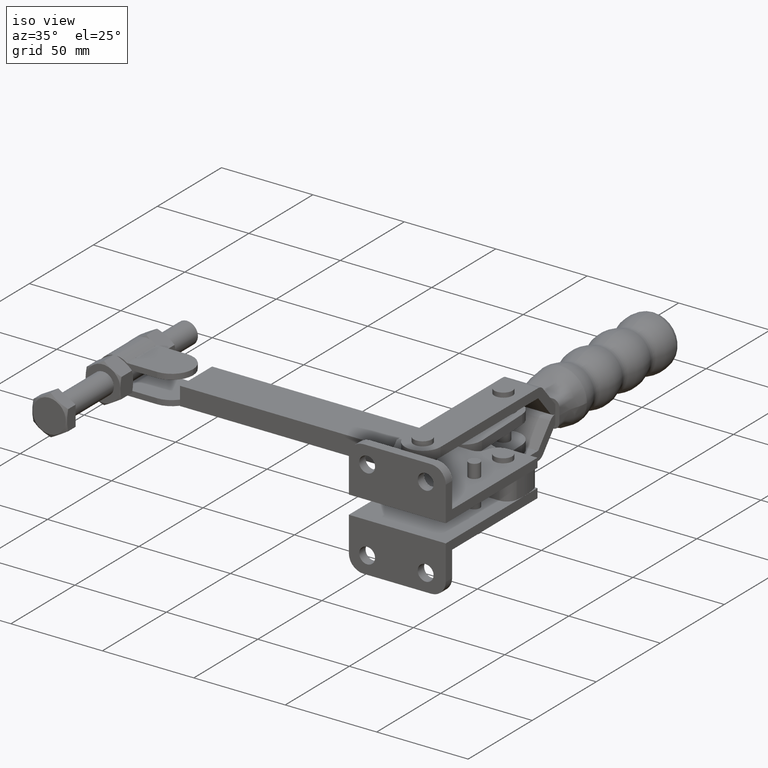
[diagram: clean part render]
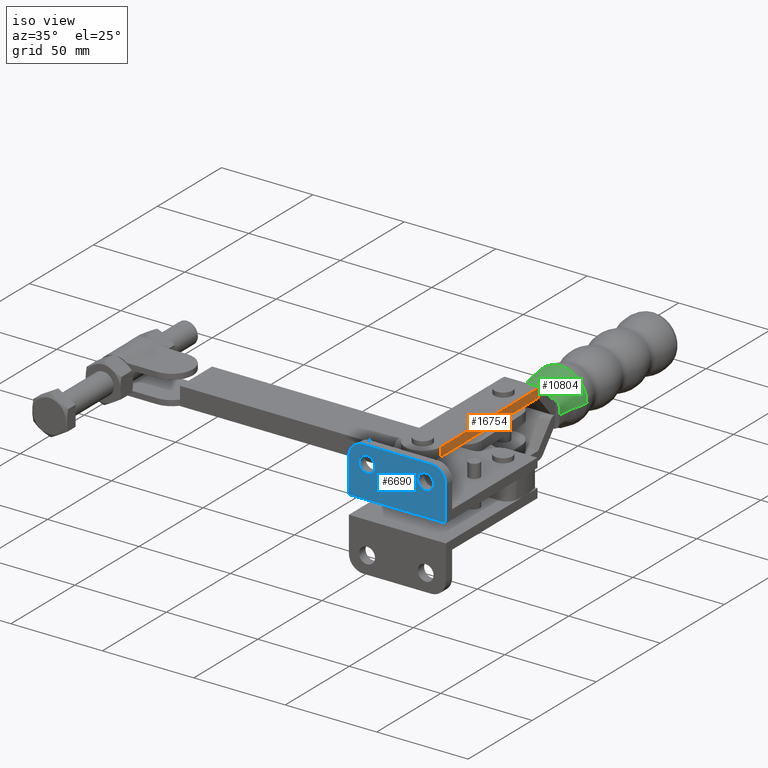
[diagram: same view with three faces highlighted in distinct colors, each labeled with its STEP entity id]
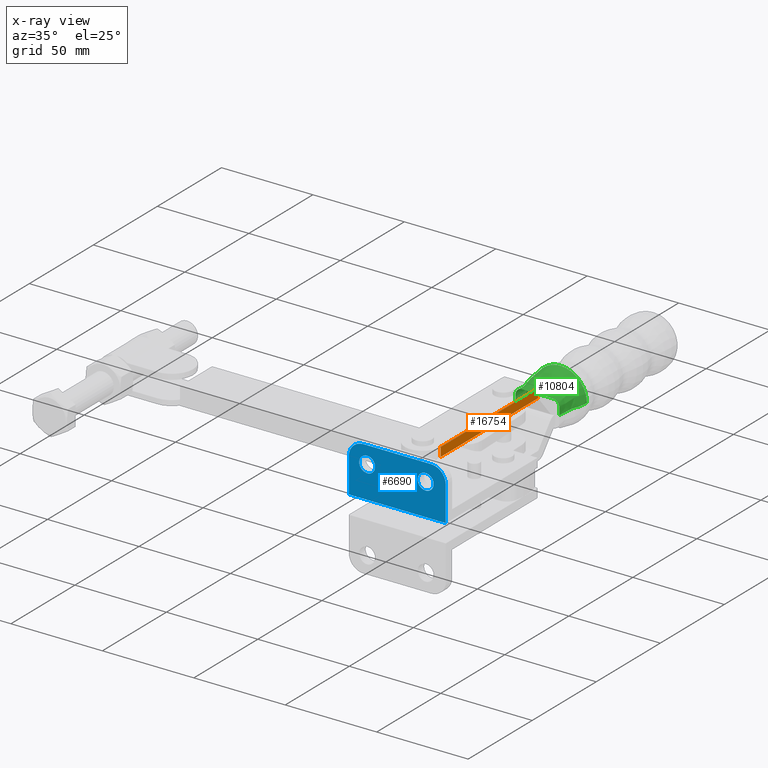
[diagram: x-ray of the same camera — body ghosted, the three highlighted faces saturated]
A machine part, iso view with three faces highlighted in distinct colors.
The next image is the same camera in x-ray (body ghosted, the three faces saturated) — at least one of them is partly hidden behind the body in this view.
Their STEP definitions:

[orange] entity #16754 — the highlighted planar face has unit normal (1, -0, -0).
#363 = EDGE_CURVE ( 'NONE', #13548, #11966, #16199, .T. ) ;
#1199 = ORIENTED_EDGE ( 'NONE', *, *, #363, .T. ) ;
#1633 = CARTESIAN_POINT ( 'NONE',  ( -32.25000000195292700, 67.35051694824952100, 17.99999999999998900 ) ) ;
#1859 = VECTOR ( 'NONE', #23576, 1000.000000000000000 ) ;
#2812 = LINE ( 'NONE', #20616, #12577 ) ;
#2813 = ORIENTED_EDGE ( 'NONE', *, *, #15460, .T. ) ;
#3065 = FACE_OUTER_BOUND ( 'NONE', #18758, .T. ) ;
#3233 = AXIS2_PLACEMENT_3D ( 'NONE', #3594, #23131, #11432 ) ;
#3236 = ORIENTED_EDGE ( 'NONE', *, *, #6794, .T. ) ;
#3594 = CARTESIAN_POINT ( 'NONE',  ( -32.24847502470899500, 143.5268841873474600, 12.98999999999999800 ) ) ;
#4527 = CARTESIAN_POINT ( 'NONE',  ( -32.25000000195292700, 67.35051694824952100, 12.99000000000000000 ) ) ;
#5023 = DIRECTION ( 'NONE',  ( 1.096973980815269600E-017, 1.020321491645312500E-017, 1.000000000000000000 ) ) ;
#5189 = VECTOR ( 'NONE', #23815, 1000.000000000000100 ) ;
#6794 = EDGE_CURVE ( 'NONE', #16770, #13548, #20136, .T. ) ;
#9482 = EDGE_CURVE ( 'NONE', #23096, #11966, #19921, .T. ) ;
#10255 = DIRECTION ( 'NONE',  ( -2.001903344682703700E-005, -0.9999999997996190700, -1.077381049251856000E-016 ) ) ;
#11432 = DIRECTION ( 'NONE',  ( -1.096973980815269500E-017, -1.020321491645312500E-017, -1.000000000000000000 ) ) ;
#11966 = VERTEX_POINT ( 'NONE', #22027 ) ;
#12116 = CARTESIAN_POINT ( 'NONE',  ( -32.24842850782734900, 145.8505169325196700, 18.00000000000000000 ) ) ;
#12577 = VECTOR ( 'NONE', #5023, 1000.000000000000000 ) ;
#13073 = CARTESIAN_POINT ( 'NONE',  ( -32.24847502470899500, 143.5268841873474600, 12.99999999999999800 ) ) ;
#13548 = VERTEX_POINT ( 'NONE', #1633 ) ;
#15255 = PLANE ( 'NONE',  #3233 ) ;
#15349 = CARTESIAN_POINT ( 'NONE',  ( -32.24847502470899500, 143.5268841873474600, 18.00000000000000000 ) ) ;
#15460 = EDGE_CURVE ( 'NONE', #23096, #16770, #2812, .T. ) ;
#16199 = LINE ( 'NONE', #4527, #1859 ) ;
#16754 = ADVANCED_FACE ( 'NONE', ( #3065 ), #15255, .T. ) ;
#16770 = VERTEX_POINT ( 'NONE', #15349 ) ;
#17564 = ORIENTED_EDGE ( 'NONE', *, *, #9482, .F. ) ;
#18758 = EDGE_LOOP ( 'NONE', ( #3236, #1199, #17564, #2813 ) ) ;
#19921 = LINE ( 'NONE', #20030, #23922 ) ;
#20030 = CARTESIAN_POINT ( 'NONE',  ( -32.24842850782734900, 145.8505169325196700, 12.99999999999999800 ) ) ;
#20136 = LINE ( 'NONE', #12116, #5189 ) ;
#20616 = CARTESIAN_POINT ( 'NONE',  ( -32.24847502470899500, 143.5268841873474600, 12.99999999999999800 ) ) ;
#22027 = CARTESIAN_POINT ( 'NONE',  ( -32.25000000195292700, 67.35051694824952100, 12.99999999999999100 ) ) ;
#23096 = VERTEX_POINT ( 'NONE', #13073 ) ;
#23131 = DIRECTION ( 'NONE',  ( 0.9999999997996191800, -2.001903344682693200E-005, -1.096953554745389100E-017 ) ) ;
#23576 = DIRECTION ( 'NONE',  ( -1.096973980815269600E-017, -1.020321491645312500E-017, -1.000000000000000000 ) ) ;
#23815 = DIRECTION ( 'NONE',  ( -2.001903344682703700E-005, -0.9999999997996190700, -1.077381049251856000E-016 ) ) ;
#23922 = VECTOR ( 'NONE', #10255, 1000.000000000000100 ) ;

[blue] entity #6690 — the highlighted planar face has unit normal (0, 1, 0).
#354 = VECTOR ( 'NONE', #10901, 1000.000000000000000 ) ;
#838 = DIRECTION ( 'NONE',  ( 0.0000000000000000000, 1.000000000000000000, 0.0000000000000000000 ) ) ;
#889 = DIRECTION ( 'NONE',  ( 0.0000000000000000000, 0.0000000000000000000, 1.000000000000000000 ) ) ;
#1525 = CARTESIAN_POINT ( 'NONE',  ( -11.00000000000001200, 25.35071213382478900, 22.49999999999997200 ) ) ;
#1589 = EDGE_LOOP ( 'NONE', ( #12679, #9879 ) ) ;
#1748 = ORIENTED_EDGE ( 'NONE', *, *, #16042, .T. ) ;
#1831 = FACE_OUTER_BOUND ( 'NONE', #5167, .T. ) ;
#2161 = DIRECTION ( 'NONE',  ( 1.000000000000000000, 0.0000000000000000000, 0.0000000000000000000 ) ) ;
#2550 = AXIS2_PLACEMENT_3D ( 'NONE', #24293, #12586, #889 ) ;
#2580 = VERTEX_POINT ( 'NONE', #12544 ) ;
#2612 = AXIS2_PLACEMENT_3D ( 'NONE', #22535, #10855, #24534 ) ;
#2871 = CARTESIAN_POINT ( 'NONE',  ( -1.040834085586084300E-014, 25.35071213382478900, 23.99999999999991100 ) ) ;
#3066 = VERTEX_POINT ( 'NONE', #11601 ) ;
#3396 = DIRECTION ( 'NONE',  ( 0.0000000000000000000, -1.000000000000000000, 0.0000000000000000000 ) ) ;
#3507 = CIRCLE ( 'NONE', #17180, 4.349999999999999600 ) ;
#3510 = DIRECTION ( 'NONE',  ( 0.0000000000000000000, 0.0000000000000000000, 1.000000000000000000 ) ) ;
#3812 = EDGE_CURVE ( 'NONE', #16659, #7424, #3507, .T. ) ;
#4153 = VERTEX_POINT ( 'NONE', #15596 ) ;
#5167 = EDGE_LOOP ( 'NONE', ( #19038, #13007, #10738, #10264, #8249, #1748 ) ) ;
#5677 = CARTESIAN_POINT ( 'NONE',  ( -43.00000000000000700, 25.35071213382478900, 22.49999999999997200 ) ) ;
#5779 = CARTESIAN_POINT ( 'NONE',  ( -11.00000000000001200, 25.35071213382478900, 18.14999999999997000 ) ) ;
#6105 = ORIENTED_EDGE ( 'NONE', *, *, #20253, .T. ) ;
#6392 = FACE_BOUND ( 'NONE', #1589, .T. ) ;
#6531 = VERTEX_POINT ( 'NONE', #24371 ) ;
#6690 = ADVANCED_FACE ( 'NONE', ( #12216, #6392, #1831 ), #7598, .F. ) ;
#6888 = VECTOR ( 'NONE', #17469, 1000.000000000000000 ) ;
#7424 = VERTEX_POINT ( 'NONE', #14525 ) ;
#7598 = PLANE ( 'NONE',  #16087 ) ;
#7646 = DIRECTION ( 'NONE',  ( 0.0000000000000000000, 0.0000000000000000000, 1.000000000000000000 ) ) ;
#7908 = EDGE_LOOP ( 'NONE', ( #23720, #6105 ) ) ;
#8249 = ORIENTED_EDGE ( 'NONE', *, *, #25036, .T. ) ;
#8873 = CIRCLE ( 'NONE', #20690, 4.349999999999999600 ) ;
#9512 = LINE ( 'NONE', #14725, #354 ) ;
#9644 = DIRECTION ( 'NONE',  ( 0.0000000000000000000, -0.0000000000000000000, 1.000000000000000000 ) ) ;
#9879 = ORIENTED_EDGE ( 'NONE', *, *, #17858, .T. ) ;
#10187 = VERTEX_POINT ( 'NONE', #17051 ) ;
#10264 = ORIENTED_EDGE ( 'NONE', *, *, #13987, .T. ) ;
#10471 = CARTESIAN_POINT ( 'NONE',  ( -44.99999999999995700, 25.35071213382478900, 31.99999999999997200 ) ) ;
#10623 = DIRECTION ( 'NONE',  ( -0.0000000000000000000, -0.0000000000000000000, -1.000000000000000000 ) ) ;
#10710 = EDGE_CURVE ( 'NONE', #24296, #2580, #24524, .T. ) ;
#10738 = ORIENTED_EDGE ( 'NONE', *, *, #10710, .T. ) ;
#10855 = DIRECTION ( 'NONE',  ( 0.0000000000000000000, 1.000000000000000000, 0.0000000000000000000 ) ) ;
#10901 = DIRECTION ( 'NONE',  ( -0.0000000000000000000, -0.0000000000000000000, -1.000000000000000000 ) ) ;
#11018 = EDGE_CURVE ( 'NONE', #24296, #4153, #9512, .T. ) ;
#11160 = CIRCLE ( 'NONE', #2550, 8.000000000000000000 ) ;
#11316 = VERTEX_POINT ( 'NONE', #10471 ) ;
#11601 = CARTESIAN_POINT ( 'NONE',  ( -53.00000000000002100, 25.35071213382478900, 23.99999999999991100 ) ) ;
#11907 = EDGE_CURVE ( 'NONE', #6531, #4153, #18331, .T. ) ;
#12216 = FACE_BOUND ( 'NONE', #7908, .T. ) ;
#12528 = CARTESIAN_POINT ( 'NONE',  ( -43.00000000000000700, 25.35071213382478900, 22.49999999999997200 ) ) ;
#12544 = CARTESIAN_POINT ( 'NONE',  ( -8.000000000000065700, 25.35071213382478900, 31.99999999999997200 ) ) ;
#12586 = DIRECTION ( 'NONE',  ( 0.0000000000000000000, -1.000000000000000000, 0.0000000000000000000 ) ) ;
#12679 = ORIENTED_EDGE ( 'NONE', *, *, #3812, .T. ) ;
#12954 = CIRCLE ( 'NONE', #2612, 4.349999999999999600 ) ;
#13007 = ORIENTED_EDGE ( 'NONE', *, *, #11018, .F. ) ;
#13754 = VECTOR ( 'NONE', #2161, 1000.000000000000000 ) ;
#13987 = EDGE_CURVE ( 'NONE', #2580, #11316, #22476, .T. ) ;
#14484 = DIRECTION ( 'NONE',  ( 0.0000000000000000000, 0.0000000000000000000, 1.000000000000000000 ) ) ;
#14525 = CARTESIAN_POINT ( 'NONE',  ( -43.00000000000000700, 25.35071213382478900, 18.14999999999997000 ) ) ;
#14528 = CARTESIAN_POINT ( 'NONE',  ( -53.00000000000002100, 25.35071213382478900, 9.999999999999971600 ) ) ;
#14725 = CARTESIAN_POINT ( 'NONE',  ( -1.040834085586084300E-014, 25.35071213382478900, 9.999999999999971600 ) ) ;
#14988 = LINE ( 'NONE', #14528, #20787 ) ;
#15055 = CARTESIAN_POINT ( 'NONE',  ( -8.000000000000010700, 25.35071213382478900, 23.99999999999997200 ) ) ;
#15175 = DIRECTION ( 'NONE',  ( 0.0000000000000000000, 1.000000000000000000, 0.0000000000000000000 ) ) ;
#15596 = CARTESIAN_POINT ( 'NONE',  ( -1.040834085586084300E-014, 25.35071213382478900, 4.999999999999971600 ) ) ;
#16042 = EDGE_CURVE ( 'NONE', #3066, #6531, #14988, .T. ) ;
#16059 = CARTESIAN_POINT ( 'NONE',  ( -53.00000000000002100, 25.35071213382478900, 4.999999999999971600 ) ) ;
#16087 = AXIS2_PLACEMENT_3D ( 'NONE', #19365, #21313, #9644 ) ;
#16139 = AXIS2_PLACEMENT_3D ( 'NONE', #5677, #19332, #7646 ) ;
#16659 = VERTEX_POINT ( 'NONE', #16806 ) ;
#16694 = EDGE_CURVE ( 'NONE', #10187, #24031, #8873, .T. ) ;
#16806 = CARTESIAN_POINT ( 'NONE',  ( -43.00000000000000700, 25.35071213382478900, 26.84999999999996900 ) ) ;
#17024 = DIRECTION ( 'NONE',  ( 0.0000000000000000000, 0.0000000000000000000, 1.000000000000000000 ) ) ;
#17051 = CARTESIAN_POINT ( 'NONE',  ( -11.00000000000001200, 25.35071213382478900, 26.84999999999996900 ) ) ;
#17180 = AXIS2_PLACEMENT_3D ( 'NONE', #12528, #838, #14484 ) ;
#17469 = DIRECTION ( 'NONE',  ( -1.000000000000000000, -0.0000000000000000000, -0.0000000000000000000 ) ) ;
#17858 = EDGE_CURVE ( 'NONE', #7424, #16659, #19485, .T. ) ;
#18331 = LINE ( 'NONE', #16059, #13754 ) ;
#18721 = AXIS2_PLACEMENT_3D ( 'NONE', #15055, #3396, #17024 ) ;
#19038 = ORIENTED_EDGE ( 'NONE', *, *, #11907, .T. ) ;
#19332 = DIRECTION ( 'NONE',  ( 0.0000000000000000000, 1.000000000000000000, 0.0000000000000000000 ) ) ;
#19365 = CARTESIAN_POINT ( 'NONE',  ( -53.00000000000002100, 25.35071213382478900, 9.999999999999971600 ) ) ;
#19485 = CIRCLE ( 'NONE', #16139, 4.349999999999999600 ) ;
#20253 = EDGE_CURVE ( 'NONE', #24031, #10187, #12954, .T. ) ;
#20690 = AXIS2_PLACEMENT_3D ( 'NONE', #1525, #15175, #3510 ) ;
#20787 = VECTOR ( 'NONE', #10623, 1000.000000000000000 ) ;
#21293 = CARTESIAN_POINT ( 'NONE',  ( -44.99999999999995700, 25.35071213382478900, 31.99999999999997200 ) ) ;
#21313 = DIRECTION ( 'NONE',  ( 0.0000000000000000000, 1.000000000000000000, 0.0000000000000000000 ) ) ;
#22476 = LINE ( 'NONE', #21293, #6888 ) ;
#22535 = CARTESIAN_POINT ( 'NONE',  ( -11.00000000000001200, 25.35071213382478900, 22.49999999999997200 ) ) ;
#23720 = ORIENTED_EDGE ( 'NONE', *, *, #16694, .T. ) ;
#24031 = VERTEX_POINT ( 'NONE', #5779 ) ;
#24293 = CARTESIAN_POINT ( 'NONE',  ( -45.00000000000001400, 25.35071213382478900, 23.99999999999997200 ) ) ;
#24296 = VERTEX_POINT ( 'NONE', #2871 ) ;
#24371 = CARTESIAN_POINT ( 'NONE',  ( -53.00000000000002100, 25.35071213382478900, 4.999999999999971600 ) ) ;
#24524 = CIRCLE ( 'NONE', #18721, 8.000000000000000000 ) ;
#24534 = DIRECTION ( 'NONE',  ( 0.0000000000000000000, 0.0000000000000000000, 1.000000000000000000 ) ) ;
#25036 = EDGE_CURVE ( 'NONE', #11316, #3066, #11160, .T. ) ;

[green] entity #10804 — the highlighted face is a freeform B-spline surface patch.
#3 = CARTESIAN_POINT ( 'NONE',  ( -54.07774922759747900, 165.4020905453172600, -4.243388722230294600 ) ) ;
#17 = CARTESIAN_POINT ( 'NONE',  ( -55.03486626739499600, 167.3329792274489900, -3.275034714053078400E-016 ) ) ;
#21 = CARTESIAN_POINT ( 'NONE',  ( -29.99820820606220600, 156.8551098770015200, -0.9702240728754846200 ) ) ;
#53 = CARTESIAN_POINT ( 'NONE',  ( -53.99545361847899700, 160.8173919111964100, 1.002660264734206000 ) ) ;
#67 = ORIENTED_EDGE ( 'NONE', *, *, #3596, .F. ) ;
#86 = CARTESIAN_POINT ( 'NONE',  ( -56.00364355991340700, 172.4165022870884300, -3.825103683975492200 ) ) ;
#110 = CARTESIAN_POINT ( 'NONE',  ( -30.01371786014572500, 160.8395420749682800, -1.983495367199034300 ) ) ;
#136 = CARTESIAN_POINT ( 'NONE',  ( -54.92114404214905200, 167.3494773252845100, 2.372531379243163900 ) ) ;
#166 = CARTESIAN_POINT ( 'NONE',  ( -53.99818393150188500, 158.0679241497375400, -0.9702240728754850700 ) ) ;
#216 = CARTESIAN_POINT ( 'NONE',  ( -56.00359473092446900, 174.8556304833111600, 3.825103683975485900 ) ) ;
#245 = CARTESIAN_POINT ( 'NONE',  ( -53.97052869974416500, 163.0858010293488300, -0.3502884369014792100 ) ) ;
#297 = CARTESIAN_POINT ( 'NONE',  ( -53.97035360128449400, 159.3515019923874300, 4.352741694459543200 ) ) ;
#329 = CARTESIAN_POINT ( 'NONE',  ( -55.97947737204695800, 169.7897396593431600, -3.422081880522385000E-016 ) ) ;
#379 = CARTESIAN_POINT ( 'NONE',  ( -53.71665681768043800, 165.4604148014602700, 6.228930661001821400 ) ) ;
#459 = CARTESIAN_POINT ( 'NONE',  ( -54.17837095906308800, 172.4953676070197700, 7.920762436608536700 ) ) ;
#519 = CARTESIAN_POINT ( 'NONE',  ( -29.22993818648156200, 167.3696612748529200, -3.575128958162240100 ) ) ;
#538 = CARTESIAN_POINT ( 'NONE',  ( -50.94196284809203200, 158.1922918180335100, 7.399999999999999500 ) ) ;
#549 = CARTESIAN_POINT ( 'NONE',  ( -29.99812900343650000, 160.8114756882146100, -8.690113427833856300E-015 ) ) ;
#596 = B_SPLINE_CURVE_WITH_KNOTS ( 'NONE', 3,
 ( #20084, #6425, #10377, #24044, #12340, #634, #14276, #2597, #16249, #4571 ),
 .UNSPECIFIED., .F., .F.,
 ( 4, 2, 2, 2, 4 ),
 ( 0.7500000000000000000, 0.8125000000000000000, 0.8750000000000000000, 0.9375000000000000000, 1.000000000000000000 ),
 .UNSPECIFIED. ) ;
#599 = CARTESIAN_POINT ( 'NONE',  ( -28.24922128614880600, 174.8550748675807300, -4.625655915123629400 ) ) ;
#620 = CARTESIAN_POINT ( 'NONE',  ( -49.91917372004626700, 163.8898610578691800, 7.687483891587497500 ) ) ;
#634 = CARTESIAN_POINT ( 'NONE',  ( -50.90877529890630600, 174.8555284899505300, 11.59516921477363000 ) ) ;
#684 = CARTESIAN_POINT ( 'NONE',  ( -30.20573529207214800, 159.3803719987688500, -5.254037231023033900 ) ) ;
#706 = CARTESIAN_POINT ( 'NONE',  ( -49.67966320880831400, 170.0396765808930900, 11.93950154989965300 ) ) ;
#729 = CARTESIAN_POINT ( 'NONE',  ( -33.49820820525511100, 156.8551799436185900, 7.399999999999998600 ) ) ;
#762 = CARTESIAN_POINT ( 'NONE',  ( -30.99456631826975800, 165.5176038695769300, -7.696028669533542500 ) ) ;
#784 = CARTESIAN_POINT ( 'NONE',  ( -44.11620239874102400, 156.8553925055995300, 7.399999999999995000 ) ) ;
#848 = CARTESIAN_POINT ( 'NONE',  ( -30.76582848705670200, 172.5208529126128700, -9.217457724937363000 ) ) ;
#872 = CARTESIAN_POINT ( 'NONE',  ( -42.73278156585629300, 161.8675610961295800, 7.400000000000075000 ) ) ;
#933 = CARTESIAN_POINT ( 'NONE',  ( -34.22088160110313000, 158.2267033922273100, -7.400000000000000400 ) ) ;
#954 = CARTESIAN_POINT ( 'NONE',  ( -41.15295623684037500, 167.7869829083095100, 13.20995705279834800 ) ) ;
#1019 = CARTESIAN_POINT ( 'NONE',  ( -35.43290205384930400, 164.0727658160435600, -7.849054342947153100 ) ) ;
#1039 = CARTESIAN_POINT ( 'NONE',  ( -39.19869296204353000, 174.8552940654204800, 14.32017887598916800 ) ) ;
#1100 = CARTESIAN_POINT ( 'NONE',  ( -36.72623627614525800, 170.0692360985868600, -13.14438355145014900 ) ) ;
#1116 = CARTESIAN_POINT ( 'NONE',  ( -35.61568322559505600, 159.7043172632530700, 7.391871536314687900 ) ) ;
#1179 = CARTESIAN_POINT ( 'NONE',  ( -41.28987487046624900, 156.8553359252542000, -7.400000000000000400 ) ) ;
#1204 = CARTESIAN_POINT ( 'NONE',  ( -33.80416669677869400, 165.6844291066377100, 10.15772436167573100 ) ) ;
#1269 = CARTESIAN_POINT ( 'NONE',  ( -42.73278156585629300, 161.8675610961295800, -7.400000000000075000 ) ) ;
#1298 = CARTESIAN_POINT ( 'NONE',  ( -31.50641402270041500, 172.5303991568985700, 10.02457953256476700 ) ) ;
#1361 = CARTESIAN_POINT ( 'NONE',  ( -44.52154574107709800, 167.7747721519091300, -13.05742852621594400 ) ) ;
#1383 = CARTESIAN_POINT ( 'NONE',  ( -30.96208082822980100, 158.1365641505115900, 6.447487020183214800 ) ) ;
#1446 = CARTESIAN_POINT ( 'NONE',  ( -47.50315464403841000, 174.8554603127166400, -13.51242964295948600 ) ) ;
#1470 = CARTESIAN_POINT ( 'NONE',  ( -30.40050221057209300, 163.3540566607933600, 5.357960704582399800 ) ) ;
#1526 = CARTESIAN_POINT ( 'NONE',  ( -49.79991466125417100, 159.6158286790738100, -7.379753156974617300 ) ) ;
#1548 = CARTESIAN_POINT ( 'NONE',  ( -28.90128785171978600, 169.8621918344328800, 5.449616005146326700 ) ) ;
#1614 = CARTESIAN_POINT ( 'NONE',  ( -51.23286260179786200, 165.6259286151002600, -9.513137374335332900 ) ) ;
#1645 = CARTESIAN_POINT ( 'NONE',  ( -29.99820820606219500, 156.8551098770015200, 2.905685794050668000 ) ) ;
#1700 = CARTESIAN_POINT ( 'NONE',  ( -53.22996069480635100, 172.5213026228270800, -9.217457724937384400 ) ) ;
#1721 = CARTESIAN_POINT ( 'NONE',  ( -30.01371786014572900, 160.8395420749682500, 1.983495367199032100 ) ) ;
#1782 = CARTESIAN_POINT ( 'NONE',  ( -53.82298042692792000, 158.1116034387089500, -5.262187590426344200 ) ) ;
#1806 = CARTESIAN_POINT ( 'NONE',  ( -28.98136457877749500, 167.3356484633964400, 1.174141167624054500 ) ) ;
#1862 = CARTESIAN_POINT ( 'NONE',  ( -53.79827879687443500, 163.2796877570372700, -4.483788916191819900 ) ) ;
#1873 = ORIENTED_EDGE ( 'NONE', *, *, #17557, .T. ) ;
#1887 = CARTESIAN_POINT ( 'NONE',  ( -27.49784786396112300, 174.8550598258110500, 0.4266562176204433700 ) ) ;
#1919 = CARTESIAN_POINT ( 'NONE',  ( -53.99815971285429600, 159.2777052649426000, 0.3289859883935474200 ) ) ;
#1949 = CARTESIAN_POINT ( 'NONE',  ( -55.36751229974311200, 169.8415703068592100, -4.527037572557115500 ) ) ;
#1962 = CARTESIAN_POINT ( 'NONE',  ( -29.99820820606220900, 156.8551098770015200, -3.899999999999976400 ) ) ;
#1968 = CARTESIAN_POINT ( 'NONE',  ( -56.49789724061080400, 172.3888648315816900, -3.630406897098296000E-016 ) ) ;
#1972 = CARTESIAN_POINT ( 'NONE',  ( -29.99904199893869000, 159.2801951201578300, -0.9809219685680474800 ) ) ;
#1994 = CARTESIAN_POINT ( 'NONE',  ( -54.31833187597288800, 165.3450849826672600, 1.123504302213652400 ) ) ;
#2027 = CARTESIAN_POINT ( 'NONE',  ( -53.99820820125307100, 156.8555903338042600, -1.934530261371077300 ) ) ;
#2054 = CARTESIAN_POINT ( 'NONE',  ( -29.73483244072726000, 165.3591242170399800, -2.280076279857010200 ) ) ;
#2083 = CARTESIAN_POINT ( 'NONE',  ( -56.28764390878302500, 172.4012068928482800, 2.571108050766369500 ) ) ;
#2121 = CARTESIAN_POINT ( 'NONE',  ( -53.99545361847896900, 160.8173919111964100, -1.002660264734209300 ) ) ;
#2170 = CARTESIAN_POINT ( 'NONE',  ( -53.99818351291226300, 158.0888337308424800, 3.565082673646924800 ) ) ;
#2206 = CARTESIAN_POINT ( 'NONE',  ( -55.03486626739499600, 167.3329792274489900, -0.3877210822063194000 ) ) ;
#2255 = CARTESIAN_POINT ( 'NONE',  ( -53.79827879687444900, 163.2796877570372900, 4.483788916191817200 ) ) ;
#2284 = CARTESIAN_POINT ( 'NONE',  ( -56.49784785815008800, 174.8556403777810100, -6.863658699046109400E-016 ) ) ;
#2332 = CARTESIAN_POINT ( 'NONE',  ( -54.70979536431112000, 169.8888350237187400, 6.478196823743306100 ) ) ;
#2367 = CARTESIAN_POINT ( 'NONE',  ( -33.49820820536089600, 156.8551799436185900, 7.399999999999998600 ) ) ;
#2421 = CARTESIAN_POINT ( 'NONE',  ( -51.84883284933828000, 156.8555473053871800, 7.228372528394113600 ) ) ;
#2482 = CARTESIAN_POINT ( 'NONE',  ( -27.99214982017571900, 172.4159415240580700, -3.825103683975478800 ) ) ;
#2507 = CARTESIAN_POINT ( 'NONE',  ( -50.97413579613111500, 161.2810199593442100, 7.298947582133696900 ) ) ;
#2515 = CARTESIAN_POINT ( 'NONE',  ( -29.66564042045369800, 165.3411039990127700, -9.524348031895438500E-015 ) ) ;
#2564 = CARTESIAN_POINT ( 'NONE',  ( -29.99818332338375300, 158.0980609172050600, -4.348231599378971500 ) ) ;
#2583 = CARTESIAN_POINT ( 'NONE',  ( -50.58887436264854600, 167.6163008913283400, 10.48945490821284000 ) ) ;
#2597 = CARTESIAN_POINT ( 'NONE',  ( -45.79319218350467200, 174.8554260809210100, 14.12260381169060100 ) ) ;
#2641 = CARTESIAN_POINT ( 'NONE',  ( -30.40050221057207100, 163.3540566607933300, -5.357960704582397100 ) ) ;
#2663 = CARTESIAN_POINT ( 'NONE',  ( -49.99004336963022200, 174.8555100978252600, 12.20544069266287000 ) ) ;
#2687 = CARTESIAN_POINT ( 'NONE',  ( -56.49784785815009500, 174.8556403777810100, -9.335360649693782700E-017 ) ) ;
#2691 = CARTESIAN_POINT ( 'NONE',  ( -30.96210648131947000, 156.8551291733134300, 6.447487020183215700 ) ) ;
#2732 = CARTESIAN_POINT ( 'NONE',  ( -30.07465693052545000, 169.9293510706102700, -7.912278353078922200 ) ) ;
#2754 = CARTESIAN_POINT ( 'NONE',  ( -44.13999833464217200, 159.9028237302933300, 7.401047931045059000 ) ) ;
#2823 = CARTESIAN_POINT ( 'NONE',  ( -33.05442679852669100, 156.8551710595437500, -7.400000000000000400 ) ) ;
#2847 = CARTESIAN_POINT ( 'NONE',  ( -42.80549376486603600, 165.9384890344237000, 12.49517666581065200 ) ) ;
#2909 = CARTESIAN_POINT ( 'NONE',  ( -34.14664740419745900, 161.3882000867956800, -7.338611246194704800 ) ) ;
#2926 = CARTESIAN_POINT ( 'NONE',  ( -41.06800238476648700, 172.5436964312583000, 14.50000000000662900 ) ) ;
#2991 = CARTESIAN_POINT ( 'NONE',  ( -34.78464796001191000, 167.6654554374176500, -11.37404302906071900 ) ) ;
#3014 = CARTESIAN_POINT ( 'NONE',  ( -37.77089492443956700, 158.3349972417551000, 7.400000000000000400 ) ) ;
#3081 = CARTESIAN_POINT ( 'NONE',  ( -36.49254107807279700, 174.8552398908753700, -13.51242964295949600 ) ) ;
#3105 = CARTESIAN_POINT ( 'NONE',  ( -35.43290205384933200, 164.0727658160435900, 7.849054342947142400 ) ) ;
#3167 = CARTESIAN_POINT ( 'NONE',  ( -41.28112603155186400, 159.9238375114901200, -7.400000000000061600 ) ) ;
#3189 = CARTESIAN_POINT ( 'NONE',  ( -32.88588162187334500, 170.0156346267155800, 10.88719421311606400 ) ) ;
#3254 = CARTESIAN_POINT ( 'NONE',  ( -42.80549376486603600, 165.9384890344237000, -12.49517666581063800 ) ) ;
#3279 = CARTESIAN_POINT ( 'NONE',  ( -32.14758355797705000, 156.8551529054186100, 7.228372528394118000 ) ) ;
#3341 = CARTESIAN_POINT ( 'NONE',  ( -44.79704906137116900, 172.5425420531441900, -14.32017887598918400 ) ) ;
#3367 = CARTESIAN_POINT ( 'NONE',  ( -31.03187929348703000, 161.0934841465709400, 6.363324305820283300 ) ) ;
#3432 = CARTESIAN_POINT ( 'NONE',  ( -48.34494745532518300, 158.2738172686929700, -7.400000000000005700 ) ) ;
#3459 = CARTESIAN_POINT ( 'NONE',  ( -29.86142325503901400, 167.4399038784889100, 6.342354808033370300 ) ) ;
#3511 = CARTESIAN_POINT ( 'NONE',  ( -49.91917372004626000, 163.8898610578691800, -7.687483891587501000 ) ) ;
#3532 = CARTESIAN_POINT ( 'NONE',  ( -28.58401209285961600, 174.8550815697690800, 5.534081401126663000 ) ) ;
#3596 = EDGE_CURVE ( 'NONE', #13868, #6100, #8725, .T. ) ;
#3597 = CARTESIAN_POINT ( 'NONE',  ( -52.17761248977620900, 169.9913973950148100, -9.962855661030804600 ) ) ;
#3618 = CARTESIAN_POINT ( 'NONE',  ( -30.01053185185524400, 159.3120009273787300, 2.921836529711459000 ) ) ;
#3675 = CARTESIAN_POINT ( 'NONE',  ( -53.03430992599582800, 156.8555710374924400, -6.447487020183215700 ) ) ;
#3694 = CARTESIAN_POINT ( 'NONE',  ( -29.73483244072726700, 165.3591242170399800, 2.280076279857012400 ) ) ;
#3757 = CARTESIAN_POINT ( 'NONE',  ( -53.72476107689117700, 160.9989239343670700, -5.237475569584056200 ) ) ;
#3786 = CARTESIAN_POINT ( 'NONE',  ( -27.53571046262612400, 172.3906669996285600, 1.286538738965417300 ) ) ;
#3811 = CARTESIAN_POINT ( 'NONE',  ( -53.99818395705369100, 158.0666477993734100, -2.443292355657275600E-016 ) ) ;
#3844 = CARTESIAN_POINT ( 'NONE',  ( -54.44096678794397800, 167.4112787686294400, -5.295461589951461400 ) ) ;
#3864 = CARTESIAN_POINT ( 'NONE',  ( -53.99818395705369100, 158.0666477993734100, -2.443292355657275600E-016 ) ) ;
#3866 = CARTESIAN_POINT ( 'NONE',  ( -29.99818396185493400, 158.0661673425707100, -0.3249999999999992300 ) ) ;
#3896 = CARTESIAN_POINT ( 'NONE',  ( -53.97052869974416500, 163.0858010293488300, 0.3502884369014785900 ) ) ;
#3914 = CARTESIAN_POINT ( 'NONE',  ( -40.09980229989210400, 174.8553121047584400, 14.50000000000002300 ) ) ;
#3929 = CARTESIAN_POINT ( 'NONE',  ( -55.74647443596240500, 174.8556253360113400, -4.625655915123638300 ) ) ;
#3950 = CARTESIAN_POINT ( 'NONE',  ( -30.03106721629260900, 163.0931691648536300, -1.042437647470668700 ) ) ;
#3980 = CARTESIAN_POINT ( 'NONE',  ( -55.94874568893847300, 169.7927326404305300, 1.236556816163452600 ) ) ;
#3997 = CARTESIAN_POINT ( 'NONE',  ( -38.20250353860653500, 174.8552741226711200, 14.12260381169059200 ) ) ;
#4005 = CARTESIAN_POINT ( 'NONE',  ( -53.99301780452477600, 159.2930305125271700, -1.950679616912083000 ) ) ;
#4030 = CARTESIAN_POINT ( 'NONE',  ( -28.18750088159734100, 169.8046823293577700, -2.486074867352141600 ) ) ;
#4058 = CARTESIAN_POINT ( 'NONE',  ( -53.99820820125310700, 156.8555903338042600, 2.905685794050667500 ) ) ;
#4092 = CARTESIAN_POINT ( 'NONE',  ( -54.31833187597286600, 165.3450849826672900, -1.123504302213655700 ) ) ;
#4139 = CARTESIAN_POINT ( 'NONE',  ( -53.94036847211533100, 160.9063050107911300, 3.601512774937534200 ) ) ;
#4166 = CARTESIAN_POINT ( 'NONE',  ( -56.49789724061080400, 172.3888648315816900, -0.4266562176204421500 ) ) ;
#4215 = CARTESIAN_POINT ( 'NONE',  ( -54.44096678794395700, 167.4112787686294700, 5.295461589951457000 ) ) ;
#4296 = CARTESIAN_POINT ( 'NONE',  ( -54.97699629980313300, 174.8556099318028000, 6.531058868790505100 ) ) ;
#4386 = CARTESIAN_POINT ( 'NONE',  ( -51.84560384549946800, 159.4989104142666200, 7.190825429620817400 ) ) ;
#4446 = CARTESIAN_POINT ( 'NONE',  ( -29.99820820606220900, 156.8551098770015200, -3.565082673646929200 ) ) ;
#4470 = CARTESIAN_POINT ( 'NONE',  ( -51.23286260179786200, 165.6259286151002900, 9.513137374335340000 ) ) ;
#4480 = CARTESIAN_POINT ( 'NONE',  ( -28.01642117851967800, 169.7891798659850300, -1.046793864630354500E-014 ) ) ;
#4531 = CARTESIAN_POINT ( 'NONE',  ( -30.08243040831931500, 160.9460203885532800, -4.361906280226349100 ) ) ;
#4557 = CARTESIAN_POINT ( 'NONE',  ( -51.43260366782388400, 172.5391003503272600, 11.04840651980919100 ) ) ;
#4571 = CARTESIAN_POINT ( 'NONE',  ( -41.99784786105560400, 174.8553501017960100, 14.50000000000001200 ) ) ;
#4618 = CARTESIAN_POINT ( 'NONE',  ( -29.86142325503900400, 167.4399038784888800, -6.342354808033363200 ) ) ;
#4643 = CARTESIAN_POINT ( 'NONE',  ( -46.22546223727643200, 158.3351664940209400, 7.400000000000003000 ) ) ;
#4671 = CARTESIAN_POINT ( 'NONE',  ( -29.99820820606221600, 156.8551098770016100, 4.348231599378969700 ) ) ;
#4700 = CARTESIAN_POINT ( 'NONE',  ( -29.81737201249806900, 174.8551062604425700, -7.920762436608498500 ) ) ;
#4721 = CARTESIAN_POINT ( 'NONE',  ( -44.26660453190712000, 164.4806636520141900, 8.095099330426366500 ) ) ;
#4783 = CARTESIAN_POINT ( 'NONE',  ( -33.04374142334621900, 159.5479777255992200, -7.366671542993612000 ) ) ;
#4808 = CARTESIAN_POINT ( 'NONE',  ( -42.88937299758844500, 170.0968834836605500, 14.07235451870534200 ) ) ;
#4846 = B_SPLINE_SURFACE_WITH_KNOTS ( 'NONE', 3, 3, ( 
 ( #5678, #3811, #17455, #5753, #19408, #7742, #21366, #9693, #23357, #11657 ),
 ( #25343, #13612, #1919, #15569, #3896, #17540, #5838, #19491, #7823, #21457 ),
 ( #9778, #23439, #11748, #53, #13694, #1994, #15659, #3980, #17620, #5927 ),
 ( #19580, #7907, #21538, #9867, #23530, #11826, #136, #13780, #2083, #15743 ),
 ( #4058, #17707, #6012, #19665, #7989, #21620, #9950, #23617, #11906, #216 ),
 ( #13866, #2170, #15821, #4139, #17796, #6095, #19743, #8075, #21712, #10034 ),
 ( #23699, #12000, #297, #13938, #2255, #15907, #4215, #17876, #6172, #19821 ),
 ( #8162, #21799, #10117, #23776, #12082, #379, #14014, #2332, #15992, #4296 ),
 ( #17956, #6248, #19901, #8246, #21873, #10208, #23866, #12158, #459, #14097 ),
 ( #2421, #16068, #4386, #18040, #6332, #19981, #8327, #21949, #10286, #23942 ),
 ( #12234, #538, #14177, #2507, #16143, #4470, #18128, #6411, #20066, #8408 ),
 ( #22036, #10361, #24026, #12324, #620, #14264, #2583, #16229, #4557, #18211 ),
 ( #6502, #20154, #8493, #22124, #10452, #24110, #12399, #706, #14345, #2663 ),
 ( #16316, #4643, #18291, #6581, #20238, #8581, #22202, #10535, #24197, #12478 ),
 ( #784, #14434, #2754, #16399, #4721, #18383, #6664, #20320, #8668, #22285 ),
 ( #10613, #24279, #12562, #872, #14521, #2847, #16487, #4808, #18465, #6748 ),
 ( #20401, #8750, #22370, #10695, #24364, #12646, #954, #14602, #2926, #16573 ),
 ( #4895, #18537, #6827, #20482, #8826, #22452, #10770, #24450, #12727, #1039 ),
 ( #14686, #3014, #16663, #4984, #18621, #6906, #20576, #8912, #22543, #10864 ),
 ( #24545, #12813, #1116, #14771, #3105, #16746, #5063, #18709, #6991, #20659 ),
 ( #8998, #22632, #10950, #24628, #12908, #1204, #14861, #3189, #16829, #5144 ),
 ( #18795, #7081, #20734, #9086, #22722, #11037, #24713, #12990, #1298, #14937 ),
 ( #3279, #16916, #5226, #18889, #7167, #20823, #9169, #22813, #11121, #24797 ),
 ( #13070, #1383, #15021, #3367, #16996, #5313, #18972, #7256, #20908, #9253 ),
 ( #22892, #11198, #24890, #13155, #1470, #15111, #3459, #17083, #5391, #19051 ),
 ( #7345, #20989, #9327, #22983, #11285, #24974, #13238, #1548, #15200, #3532 ),
 ( #17171, #5473, #19136, #7440, #21076, #9407, #23073, #11372, #25062, #13319 ),
 ( #1645, #15283, #3618, #17250, #5562, #19217, #7527, #21166, #9492, #23159 ),
 ( #11456, #25142, #13411, #1721, #15378, #3694, #17339, #5648, #19301, #7617 ),
 ( #21257, #9585, #23244, #11536, #25230, #13495, #1806, #15458, #3786, #17421 ),
 ( #5730, #19381, #7710, #21334, #9661, #23331, #11625, #25314, #13581, #1887 ),
 ( #15538, #3866, #17513, #5806, #19469, #7796, #21421, #9750, #23410, #11718 ),
 ( #21, #13664, #1972, #15626, #3950, #17593, #5903, #19552, #7879, #21509 ),
 ( #9836, #23497, #11800, #110, #13755, #2054, #15711, #4030, #17681, #5984 ),
 ( #19637, #7965, #21594, #9921, #23925, #12215, #519, #14153, #2482, #16125 ),
 ( #4446, #18106, #6391, #20046, #8383, #22012, #10339, #24005, #12303, #599 ),
 ( #14242, #2564, #16207, #4531, #18190, #6482, #20135, #8470, #22103, #10430 ),
 ( #24088, #12378, #684, #14322, #2641, #16294, #4618, #18268, #6563, #20217 ),
 ( #8556, #22183, #10514, #24169, #12457, #762, #14413, #2732, #16377, #4700 ),
 ( #18360, #6640, #20299, #8645, #22262, #10594, #24259, #12543, #848, #14497 ),
 ( #2823, #16463, #4783, #18441, #6727, #20383, #8730, #22350, #10672, #24342 ),
 ( #12628, #933, #14580, #2909, #16552, #4866, #18517, #6808, #20463, #8806 ),
 ( #22432, #10748, #24430, #12703, #1019, #14667, #2991, #16642, #4962, #18601 ),
 ( #6887, #20557, #8888, #22521, #10842, #24523, #12791, #1100, #14754, #3081 ),
 ( #16726, #5046, #18687, #6970, #20637, #8980, #22611, #10929, #24604, #12886 ),
 ( #1179, #14836, #3167, #16808, #5124, #18773, #7055, #20709, #9062, #22701 ),
 ( #11014, #24695, #12971, #1269, #14913, #3254, #16896, #5206, #18859, #7146 ),
 ( #20798, #9143, #22788, #11101, #24776, #13046, #1361, #15000, #3341, #16972 ),
 ( #5288, #18952, #7234, #20885, #9229, #22876, #11176, #24868, #13131, #1446 ),
 ( #15085, #3432, #17053, #5368, #19030, #7318, #20964, #9310, #22958, #11254 ),
 ( #24950, #13218, #1526, #15177, #3511, #17144, #5452, #19110, #7416, #21056 ),
 ( #9388, #23047, #11340, #25037, #13296, #1614, #15256, #3597, #17229, #5534 ),
 ( #19189, #7504, #21141, #9465, #23133, #11435, #25118, #13381, #1700, #15352 ),
 ( #3675, #17312, #5620, #19274, #7593, #21227, #9553, #23222, #11515, #25210 ),
 ( #13469, #1782, #15436, #3757, #17392, #5711, #19362, #7680, #21309, #9641 ),
 ( #23307, #11599, #25292, #13562, #1862, #15515, #3844, #17491, #5785, #19439 ),
 ( #7772, #21397, #9723, #23383, #11691, #3, #13643, #1949, #15599, #3929 ),
 ( #17570, #5877, #19527, #7854, #21489, #9808, #23474, #11780, #86, #13731 ),
 ( #2027, #15692, #4005, #17654, #5957, #19613, #7943, #21568, #9901, #23564 ),
 ( #11853, #166, #13816, #2121, #15776, #4092, #17740, #6044, #19693, #8026 ),
 ( #21660, #9984, #23651, #11939, #245, #13891, #2206, #15855, #4166, #17827 ),
 ( #6124, #19775, #8108, #21745, #10066, #23730, #12030, #329, #13967, #2284 ) ),
 .UNSPECIFIED., .T., .F., .F.,
 ( 4, 1, 1, 1, 2, 1, 1, 1, 2, 1, 1, 1, 2, 1, 1, 1, 2, 1, 1, 1, 2, 1, 1, 1, 2, 1, 1, 1, 2, 1, 1, 1, 2, 1, 1, 1, 2, 1, 1, 1, 2, 1, 1, 1, 2, 1, 1, 1, 4 ),
 ( 4, 2, 1, 2, 1, 4 ),
 ( 0.0000000000000000000, 0.01383409895178733600, 0.02766819790357467200, 0.04150229685536199800, 0.05533639580714935800, 0.07385105555018432700, 0.09236571529321929700, 0.1108803750362542500, 0.1293950347792892100, 0.1595462760844668900, 0.1896975173896445800, 0.2198487586948222900, 0.2499999999999999400, 0.2801512413051776000, 0.3103024826103553100, 0.3404537239155329700, 0.3706049652207106200, 0.3891196249637456400, 0.4076342847067806500, 0.4261489444498156000, 0.4446636041928505600, 0.4584977031446378900, 0.4723318020964252200, 0.4861659010482125600, 0.4999999999999998900, 0.5138340989517872200, 0.5276681979035746700, 0.5415022968553618900, 0.5553363958071492200, 0.5738510555501842300, 0.5923657152932191300, 0.6108803750362539200, 0.6293950347792889300, 0.6595462760844667000, 0.6896975173896443500, 0.7198487586948222300, 0.7500000000000000000, 0.7801512413051776600, 0.8103024826103554200, 0.8404537239155331900, 0.8706049652207107400, 0.8891196249637456400, 0.9076342847067807600, 0.9261489444498156600, 0.9446636041928506700, 0.9584977031446380000, 0.9723318020964253300, 0.9861659010482126700, 1.000000000000000000 ),
 ( 0.0000000000000000000, 0.1980163457136858400, 0.2508607240512942800, 0.5695960111270812500, 0.5966649863928764600, 1.000000000000000000 ),
 .UNSPECIFIED. ) ;
#4866 = CARTESIAN_POINT ( 'NONE',  ( -33.80416669677867200, 165.6844291066377100, -10.15772436167571300 ) ) ;
#4895 = CARTESIAN_POINT ( 'NONE',  ( -39.88021400857426400, 156.8553077052062600, 7.399999999999998600 ) ) ;
#4944 = VECTOR ( 'NONE', #15618, 1000.000000000000000 ) ;
#4962 = CARTESIAN_POINT ( 'NONE',  ( -34.00569869004916500, 172.5405145097481600, -12.20544069266285300 ) ) ;
#4984 = CARTESIAN_POINT ( 'NONE',  ( -37.66018564373222700, 161.7066644980565400, 7.399878044846548900 ) ) ;
#5046 = CARTESIAN_POINT ( 'NONE',  ( -39.88018351485254000, 158.3785441682614100, -7.400000000000008300 ) ) ;
#5063 = CARTESIAN_POINT ( 'NONE',  ( -34.78464796001192400, 167.6654554374176500, 11.37404302906071300 ) ) ;
#5124 = CARTESIAN_POINT ( 'NONE',  ( -41.23460551426656900, 164.5246853654079800, -8.109078800241105600 ) ) ;
#5144 = CARTESIAN_POINT ( 'NONE',  ( -32.56313842714966000, 174.8551612280322700, 11.04840651980919800 ) ) ;
#5206 = CARTESIAN_POINT ( 'NONE',  ( -42.88937299758845300, 170.0968834836605500, -14.07235451870535000 ) ) ;
#5226 = CARTESIAN_POINT ( 'NONE',  ( -32.15070672666092100, 159.4985161414623700, 7.190825429620822700 ) ) ;
#5288 = CARTESIAN_POINT ( 'NONE',  ( -46.22549186007607600, 156.8554347315358100, -7.399999999999990600 ) ) ;
#5313 = CARTESIAN_POINT ( 'NONE',  ( -30.99456631826975800, 165.5176038695769300, 7.696028669533579800 ) ) ;
#5368 = CARTESIAN_POINT ( 'NONE',  ( -48.45312621003839800, 161.5266519415627600, -7.375354367326870000 ) ) ;
#5373 = VERTEX_POINT ( 'NONE', #17527 ) ;
#5391 = CARTESIAN_POINT ( 'NONE',  ( -29.01874725103704800, 172.4659275249074700, 6.531058868790517600 ) ) ;
#5452 = CARTESIAN_POINT ( 'NONE',  ( -50.58887436264856800, 167.6163008913283100, -10.48945490821284900 ) ) ;
#5473 = CARTESIAN_POINT ( 'NONE',  ( -29.99818351772139000, 158.0883532740397500, 3.565082673646925200 ) ) ;
#5534 = CARTESIAN_POINT ( 'NONE',  ( -52.48932823847697200, 174.8555601310926600, -10.02457953256476000 ) ) ;
#5562 = CARTESIAN_POINT ( 'NONE',  ( -30.10216412009781800, 163.1770216821593400, 3.058837524714858700 ) ) ;
#5620 = CARTESIAN_POINT ( 'NONE',  ( -53.01121827295661900, 159.4356151323944200, -6.419729016303509900 ) ) ;
#5648 = CARTESIAN_POINT ( 'NONE',  ( -28.18750088159734800, 169.8046823293577500, 2.486074867352147300 ) ) ;
#5678 = CARTESIAN_POINT ( 'NONE',  ( -53.99820820125309200, 156.8555903338042600, -1.234859299564882300E-015 ) ) ;
#5711 = CARTESIAN_POINT ( 'NONE',  ( -53.71665681768042300, 165.4604148014602500, -6.228930661001827600 ) ) ;
#5730 = CARTESIAN_POINT ( 'NONE',  ( -29.99820820606220900, 156.8551098770015200, 0.3249999999999962400 ) ) ;
#5753 = CARTESIAN_POINT ( 'NONE',  ( -53.99812899863525900, 160.8119561450173500, -2.723408095078152400E-016 ) ) ;
#5785 = CARTESIAN_POINT ( 'NONE',  ( -55.41173185619145200, 172.4465642720930700, -5.534081401126654100 ) ) ;
#5806 = CARTESIAN_POINT ( 'NONE',  ( -29.99812900343650000, 160.8114756882146100, -0.3370855809399688200 ) ) ;
#5838 = CARTESIAN_POINT ( 'NONE',  ( -55.03486626739499600, 167.3329792274489900, 0.3877210822063186800 ) ) ;
#5877 = CARTESIAN_POINT ( 'NONE',  ( -53.99818365729938600, 158.0816212399020600, -2.905685794050673300 ) ) ;
#5903 = CARTESIAN_POINT ( 'NONE',  ( -28.98136457877749800, 167.3356484633964400, -1.174141167624059200 ) ) ;
#5927 = CARTESIAN_POINT ( 'NONE',  ( -56.46003459426269400, 174.8556396207960100, 1.286538738965417500 ) ) ;
#5947 = CARTESIAN_POINT ( 'NONE',  ( -33.08692042320491600, 174.8551717136416200, 11.59516921477363000 ) ) ;
#5957 = CARTESIAN_POINT ( 'NONE',  ( -53.93877996382811100, 163.1263309956179600, -2.059429438747201400 ) ) ;
#5984 = CARTESIAN_POINT ( 'NONE',  ( -27.70810094862992300, 174.8550640348746000, -2.571108050766364600 ) ) ;
#6012 = CARTESIAN_POINT ( 'NONE',  ( -53.98578618629635200, 159.3124808887972400, 2.921836529711458100 ) ) ;
#6044 = CARTESIAN_POINT ( 'NONE',  ( -55.94874568893843800, 169.7927326404305600, -1.236556816163456800 ) ) ;
#6089 = CARTESIAN_POINT ( 'NONE',  ( -29.99820820606220900, 156.8551098770015200, -1.127570259384924600E-014 ) ) ;
#6095 = CARTESIAN_POINT ( 'NONE',  ( -54.07774922759746500, 165.4020905453172900, 4.243388722230294600 ) ) ;
#6100 = VERTEX_POINT ( 'NONE', #2687 ) ;
#6124 = CARTESIAN_POINT ( 'NONE',  ( -53.99820820125309200, 156.8555903338042600, -1.234859299564882300E-015 ) ) ;
#6172 = CARTESIAN_POINT ( 'NONE',  ( -55.41173185619145200, 172.4465642720930700, 5.534081401126650600 ) ) ;
#6248 = CARTESIAN_POINT ( 'NONE',  ( -53.03428427290612700, 158.1370060146906600, 6.447487020183214800 ) ) ;
#6332 = CARTESIAN_POINT ( 'NONE',  ( -51.81242803062981700, 163.6370672290604800, 7.284445270039986700 ) ) ;
#6342 = CARTESIAN_POINT ( 'NONE',  ( -29.99818396185493400, 158.0661673425707100, -9.336390145452519200E-015 ) ) ;
#6391 = CARTESIAN_POINT ( 'NONE',  ( -30.01720826650842600, 159.3288105680553300, -3.577097814800796800 ) ) ;
#6411 = CARTESIAN_POINT ( 'NONE',  ( -52.17761248977620900, 169.9913973950147900, 9.962855661030797400 ) ) ;
#6419 = CARTESIAN_POINT ( 'NONE',  ( -27.49784786396110900, 174.8550598258110500, -5.867937290491051900E-015 ) ) ;
#6425 = CARTESIAN_POINT ( 'NONE',  ( -56.49784785815010200, 174.8556403777811000, 1.898045561543837900 ) ) ;
#6482 = CARTESIAN_POINT ( 'NONE',  ( -30.03305634290903500, 165.4271077435335800, -5.168155539431751300 ) ) ;
#6502 = CARTESIAN_POINT ( 'NONE',  ( -48.34497584912322300, 156.8554771615566800, 7.399999999999995000 ) ) ;
#6563 = CARTESIAN_POINT ( 'NONE',  ( -29.01874725103703800, 172.4659275249074700, -6.531058868790498000 ) ) ;
#6581 = CARTESIAN_POINT ( 'NONE',  ( -46.33603652285527400, 161.7068381802054900, 7.399878044846548000 ) ) ;
#6640 = CARTESIAN_POINT ( 'NONE',  ( -32.14755729803737000, 158.1669015315034400, -7.228372528394117100 ) ) ;
#6664 = CARTESIAN_POINT ( 'NONE',  ( -44.52154574107709800, 167.7747721519091300, 13.05742852621594400 ) ) ;
#6727 = CARTESIAN_POINT ( 'NONE',  ( -33.00090943691109400, 163.7450467838650100, -7.535559182082940800 ) ) ;
#6748 = CARTESIAN_POINT ( 'NONE',  ( -42.92773961404422100, 174.8553687173301200, 14.50000000000000200 ) ) ;
#6776 = CARTESIAN_POINT ( 'NONE',  ( -33.49820820525511100, 156.8551799436185900, 7.399999999999998600 ) ) ;
#6808 = CARTESIAN_POINT ( 'NONE',  ( -32.88588162187331700, 170.0156346267155800, -10.88719421311605400 ) ) ;
#6827 = CARTESIAN_POINT ( 'NONE',  ( -39.85629605943681500, 159.9027379747142000, 7.401047931045060800 ) ) ;
#6887 = CARTESIAN_POINT ( 'NONE',  ( -37.77092454723921100, 156.8552654792699500, -7.399999999999991500 ) ) ;
#6906 = CARTESIAN_POINT ( 'NONE',  ( -37.30814863385749200, 165.8530920218422900, 11.78674320466699600 ) ) ;
#6970 = CARTESIAN_POINT ( 'NONE',  ( -39.80777969789567500, 161.8344240140945400, -7.403177343788722300 ) ) ;
#6991 = CARTESIAN_POINT ( 'NONE',  ( -34.00569869004917900, 172.5405145097481400, 12.20544069266286200 ) ) ;
#7055 = CARTESIAN_POINT ( 'NONE',  ( -41.15295623684036700, 167.7869829083095400, -13.20995705279835300 ) ) ;
#7081 = CARTESIAN_POINT ( 'NONE',  ( -33.05440003783018500, 158.1919337263152600, 7.400000000000000400 ) ) ;
#7146 = CARTESIAN_POINT ( 'NONE',  ( -42.92773961404421400, 174.8553687173301200, -14.50000000000000200 ) ) ;
#7167 = CARTESIAN_POINT ( 'NONE',  ( -32.18371685770663500, 163.6366742812349500, 7.284445270039994600 ) ) ;
#7234 = CARTESIAN_POINT ( 'NONE',  ( -46.26192365981731300, 159.8206086377954600, -7.399959777537517900 ) ) ;
#7242 = LINE ( 'NONE', #19105, #11847 ) ;
#7256 = CARTESIAN_POINT ( 'NONE',  ( -30.07465693052547500, 169.9293510706102700, 7.912278353078967500 ) ) ;
#7318 = CARTESIAN_POINT ( 'NONE',  ( -48.84990026154926600, 165.7580305673096500, -10.90454232679083900 ) ) ;
#7345 = CARTESIAN_POINT ( 'NONE',  ( -29.99820820606220900, 156.8551098770015200, 4.348231599378969700 ) ) ;
#7416 = CARTESIAN_POINT ( 'NONE',  ( -51.43260366782388400, 172.5391003503272900, -11.04840651980920200 ) ) ;
#7440 = CARTESIAN_POINT ( 'NONE',  ( -30.05588575236441100, 160.9058268665326100, 3.601512774937536000 ) ) ;
#7504 = CARTESIAN_POINT ( 'NONE',  ( -51.84880658939862700, 158.1672959314720400, -7.228372528394118900 ) ) ;
#7527 = CARTESIAN_POINT ( 'NONE',  ( -29.22993818648155800, 167.3696612748529400, 3.575128958162244100 ) ) ;
#7593 = CARTESIAN_POINT ( 'NONE',  ( -52.86891405538530400, 163.4881592351077300, -6.489217865222654400 ) ) ;
#7617 = CARTESIAN_POINT ( 'NONE',  ( -27.70810094862993000, 174.8550640348745400, 2.571108050766378400 ) ) ;
#7680 = CARTESIAN_POINT ( 'NONE',  ( -54.70979536431109100, 169.8888350237187700, -6.478196823743315800 ) ) ;
#7710 = CARTESIAN_POINT ( 'NONE',  ( -29.99815971765555700, 159.2772248081398600, 0.3289859883935470900 ) ) ;
#7742 = CARTESIAN_POINT ( 'NONE',  ( -54.33043622379091200, 165.3415977643858800, -3.149123926484167700E-016 ) ) ;
#7772 = CARTESIAN_POINT ( 'NONE',  ( -53.99820820125309200, 156.8555903338042600, -3.565082673646929200 ) ) ;
#7792 = CARTESIAN_POINT ( 'NONE',  ( -53.99820820125309200, 156.8555903338042600, -1.301042606982605300E-015 ) ) ;
#7796 = CARTESIAN_POINT ( 'NONE',  ( -29.66564042045369100, 165.3411039990127700, -0.3704850414950786000 ) ) ;
#7823 = CARTESIAN_POINT ( 'NONE',  ( -56.49789724061080400, 172.3888648315816900, 0.4266562176204408700 ) ) ;
#7854 = CARTESIAN_POINT ( 'NONE',  ( -53.96061310549383400, 160.8755132360898300, -2.954655084424011100 ) ) ;
#7879 = CARTESIAN_POINT ( 'NONE',  ( -27.53571046262613100, 172.3906669996285400, -1.286538738965417900 ) ) ;
#7907 = CARTESIAN_POINT ( 'NONE',  ( -53.99818382536155800, 158.0732261188948700, 1.934530261371076000 ) ) ;
#7926 = CARTESIAN_POINT ( 'NONE',  ( -29.32794523245765800, 174.8550964625915200, 7.302475215378056100 ) ) ;
#7943 = CARTESIAN_POINT ( 'NONE',  ( -54.92114404214908800, 167.3494773252844800, -2.372531379243163900 ) ) ;
#7965 = CARTESIAN_POINT ( 'NONE',  ( -29.99818366210848500, 158.0811407830993600, -2.905685794050669300 ) ) ;
#7989 = CARTESIAN_POINT ( 'NONE',  ( -53.89399917017087900, 163.1774979717010300, 3.058837524714856900 ) ) ;
#8026 = CARTESIAN_POINT ( 'NONE',  ( -56.46003459426265900, 174.8556396207960400, -1.286538738965422800 ) ) ;
#8075 = CARTESIAN_POINT ( 'NONE',  ( -55.36751229974311200, 169.8415703068592100, 4.527037572557113700 ) ) ;
#8108 = CARTESIAN_POINT ( 'NONE',  ( -53.99815971285429600, 159.2777052649426000, -2.566861811156640200E-016 ) ) ;
#8162 = CARTESIAN_POINT ( 'NONE',  ( -53.82300557116652600, 156.8555868264169200, 5.262187590426330900 ) ) ;
#8193 = DIRECTION ( 'NONE',  ( 0.9999999997996190700, -2.001903344682692800E-005, -1.096953554745389000E-017 ) ) ;
#8246 = CARTESIAN_POINT ( 'NONE',  ( -52.96436741834115500, 161.0939232137843900, 6.363324305820280600 ) ) ;
#8327 = CARTESIAN_POINT ( 'NONE',  ( -52.40518577466004000, 167.5409055630110500, 9.048820260900074100 ) ) ;
#8383 = CARTESIAN_POINT ( 'NONE',  ( -30.14356561283740300, 163.2214953358092400, -3.716627520683859900 ) ) ;
#8408 = CARTESIAN_POINT ( 'NONE',  ( -52.48932823847697200, 174.8555601310926600, 10.02457953256475600 ) ) ;
#8470 = CARTESIAN_POINT ( 'NONE',  ( -28.90128785171977600, 169.8621918344328800, -5.449616005146312500 ) ) ;
#8493 = CARTESIAN_POINT ( 'NONE',  ( -48.38061910946517200, 159.7045728049315300, 7.391871536314683400 ) ) ;
#8503 = B_SPLINE_CURVE_WITH_KNOTS ( 'NONE', 3,
 ( #11767, #3914, #3997, #17642, #5947, #19602, #7926, #21560, #9891, #23550 ),
 .UNSPECIFIED., .F., .F.,
 ( 4, 2, 2, 2, 4 ),
 ( 0.0000000000000000000, 0.06250000000000004200, 0.1250000000000000800, 0.1875000000000000300, 0.2500000000000000000 ),
 .UNSPECIFIED. ) ;
#8517 = CARTESIAN_POINT ( 'NONE',  ( -32.14758355797705000, 156.8551529054186900, 7.228372528394118000 ) ) ;
#8556 = CARTESIAN_POINT ( 'NONE',  ( -30.96210648131950200, 156.8551291733133400, -6.447487020183202400 ) ) ;
#8581 = CARTESIAN_POINT ( 'NONE',  ( -46.68790751750539400, 165.8532797955492700, 11.78674320466698200 ) ) ;
#8645 = CARTESIAN_POINT ( 'NONE',  ( -32.15712650902604300, 161.2006975069223200, -7.114529120816652800 ) ) ;
#8668 = CARTESIAN_POINT ( 'NONE',  ( -44.79704906137118300, 172.5425420531441600, 14.32017887598920000 ) ) ;
#8725 = B_SPLINE_CURVE_WITH_KNOTS ( 'NONE', 3,
 ( #7792, #3864, #15534, #9747, #23404, #11715, #17, #13661, #1968, #15621 ),
 .UNSPECIFIED., .F., .F.,
 ( 4, 2, 1, 2, 1, 4 ),
 ( 0.0000000000000000000, 0.1980163457136858400, 0.2508607240512942800, 0.5695960111270812500, 0.5966649863928764600, 1.000000000000000000 ),
 .UNSPECIFIED. ) ;
#8730 = CARTESIAN_POINT ( 'NONE',  ( -32.35747213312591700, 167.5737094264067900, -9.718816108078360800 ) ) ;
#8750 = CARTESIAN_POINT ( 'NONE',  ( -41.28984415624656600, 158.3895868053289500, 7.400000000000022600 ) ) ;
#8806 = CARTESIAN_POINT ( 'NONE',  ( -32.56313842714963200, 174.8551612280322700, -11.04840651980918100 ) ) ;
#8826 = CARTESIAN_POINT ( 'NONE',  ( -39.72950657441247600, 164.4805728236984000, 8.095099330426359400 ) ) ;
#8859 = CARTESIAN_POINT ( 'NONE',  ( -53.82300557116652600, 156.8555868264169200, 5.262187590426330900 ) ) ;
#8888 = CARTESIAN_POINT ( 'NONE',  ( -37.73437402769518200, 159.8204379244941400, -7.399959777537519700 ) ) ;
#8912 = CARTESIAN_POINT ( 'NONE',  ( -36.72623627614527200, 170.0692360985868600, 13.14438355145015100 ) ) ;
#8980 = CARTESIAN_POINT ( 'NONE',  ( -39.59812557805084800, 165.9206652106611000, -12.35891047920783400 ) ) ;
#8998 = CARTESIAN_POINT ( 'NONE',  ( -34.22090905738731700, 156.8551944113911200, 7.399999999999998600 ) ) ;
#9062 = CARTESIAN_POINT ( 'NONE',  ( -41.06800238476648000, 172.5436964312583000, -14.50000000000662900 ) ) ;
#9086 = CARTESIAN_POINT ( 'NONE',  ( -33.02210342311067800, 161.2806605770076400, 7.298947582133698700 ) ) ;
#9143 = CARTESIAN_POINT ( 'NONE',  ( -44.11617190501933500, 158.3786289686547100, -7.400000000000010100 ) ) ;
#9169 = CARTESIAN_POINT ( 'NONE',  ( -31.59080281201108400, 167.5404888791817700, 9.048820260900084700 ) ) ;
#9229 = CARTESIAN_POINT ( 'NONE',  ( -46.45302592098265400, 164.3116103048074300, -8.010297161412575300 ) ) ;
#9253 = CARTESIAN_POINT ( 'NONE',  ( -29.81737201249810100, 174.8551062604425700, 7.920762436608554500 ) ) ;
#9310 = CARTESIAN_POINT ( 'NONE',  ( -49.67966320880831400, 170.0396765808931100, -11.93950154989965100 ) ) ;
#9327 = CARTESIAN_POINT ( 'NONE',  ( -30.02596287452563900, 159.3510226488284900, 4.352741694459543200 ) ) ;
#9388 = CARTESIAN_POINT ( 'NONE',  ( -50.94198960878857500, 156.8555291512620300, -7.400000000000002100 ) ) ;
#9407 = CARTESIAN_POINT ( 'NONE',  ( -29.91832499443099600, 165.4016068969946500, 4.243388722230299100 ) ) ;
#9465 = CARTESIAN_POINT ( 'NONE',  ( -51.83911591108878300, 161.2010915213265300, -7.114529120816656300 ) ) ;
#9492 = CARTESIAN_POINT ( 'NONE',  ( -27.99214982017570500, 172.4159415240581000, 3.825103683975491700 ) ) ;
#9553 = CARTESIAN_POINT ( 'NONE',  ( -53.38988415262496500, 167.4893144473720700, -7.795587145182103100 ) ) ;
#9585 = CARTESIAN_POINT ( 'NONE',  ( -29.99818393631099100, 158.0674436929348300, 0.9702240728754795200 ) ) ;
#9623 = CARTESIAN_POINT ( 'NONE',  ( -27.49784786396110900, 174.8550598258110500, -5.867937290491051900E-015 ) ) ;
#9641 = CARTESIAN_POINT ( 'NONE',  ( -54.97699629980310500, 174.8556099318028000, -6.531058868790515800 ) ) ;
#9661 = CARTESIAN_POINT ( 'NONE',  ( -30.02563826195402200, 163.0853216757862200, 0.3502884369014783200 ) ) ;
#9693 = CARTESIAN_POINT ( 'NONE',  ( -55.97947737204695800, 169.7897396593431600, -3.422081880522385000E-016 ) ) ;
#9723 = CARTESIAN_POINT ( 'NONE',  ( -53.97910909862320500, 159.3292902621496400, -3.577097814800797200 ) ) ;
#9747 = CARTESIAN_POINT ( 'NONE',  ( -53.99812899863525900, 160.8119561450173500, -2.723408095078152400E-016 ) ) ;
#9750 = CARTESIAN_POINT ( 'NONE',  ( -28.01642117851967800, 169.7891798659850300, -0.4090090033414628400 ) ) ;
#9778 = CARTESIAN_POINT ( 'NONE',  ( -53.99820820125312100, 156.8555903338042600, 0.9702240728754805100 ) ) ;
#9808 = CARTESIAN_POINT ( 'NONE',  ( -54.16548582597224000, 165.3823181598201300, -3.454196989813687100 ) ) ;
#9836 = CARTESIAN_POINT ( 'NONE',  ( -29.99820820606220900, 156.8551098770015200, -1.934530261371081100 ) ) ;
#9867 = CARTESIAN_POINT ( 'NONE',  ( -53.98253901821478000, 160.8400219076008300, 1.983495367199031600 ) ) ;
#9891 = CARTESIAN_POINT ( 'NONE',  ( -27.49784786396109100, 174.8550598258110500, 1.898045561543831600 ) ) ;
#9901 = CARTESIAN_POINT ( 'NONE',  ( -56.28764390878305300, 172.4012068928482800, -2.571108050766369500 ) ) ;
#9921 = CARTESIAN_POINT ( 'NONE',  ( -30.03564235184510500, 160.8750342813000000, -2.954655084424006700 ) ) ;
#9950 = CARTESIAN_POINT ( 'NONE',  ( -54.76605723790344600, 167.3701724832752400, 3.575128958162241900 ) ) ;
#9984 = CARTESIAN_POINT ( 'NONE',  ( -53.99818395705369100, 158.0666477993734100, -0.3249999999999989600 ) ) ;
#10034 = CARTESIAN_POINT ( 'NONE',  ( -55.74647443596240500, 174.8556253360113400, 4.625655915123636500 ) ) ;
#10066 = CARTESIAN_POINT ( 'NONE',  ( -53.97052869974416500, 163.0858010293488300, -2.958441056467895600E-016 ) ) ;
#10117 = CARTESIAN_POINT ( 'NONE',  ( -53.79058000879116700, 159.3808441445641500, 5.254037231023032100 ) ) ;
#10208 = CARTESIAN_POINT ( 'NONE',  ( -53.00150326032756000, 165.5180444271842900, 7.696028669533572700 ) ) ;
#10286 = CARTESIAN_POINT ( 'NONE',  ( -53.22996069480638000, 172.5213026228270800, 9.217457724937359500 ) ) ;
#10339 = CARTESIAN_POINT ( 'NONE',  ( -29.37101595736225700, 167.3877777166116200, -4.371266485217659300 ) ) ;
#10361 = CARTESIAN_POINT ( 'NONE',  ( -49.77547989364381900, 158.2270147802508400, 7.399999999999997700 ) ) ;
#10377 = CARTESIAN_POINT ( 'NONE',  ( -56.12045166991631400, 174.8556328226741200, 3.795344323209569800 ) ) ;
#10430 = CARTESIAN_POINT ( 'NONE',  ( -28.58401209285960900, 174.8550815697690800, -5.534081401126637300 ) ) ;
#10452 = CARTESIAN_POINT ( 'NONE',  ( -48.56322537683004700, 164.0730286724253800, 7.849054342947142400 ) ) ;
#10459 = ORIENTED_EDGE ( 'NONE', *, *, #19232, .F. ) ;
#10481 = VERTEX_POINT ( 'NONE', #17987 ) ;
#10514 = CARTESIAN_POINT ( 'NONE',  ( -30.98509483435815100, 159.4351741906924900, -6.419729016303495700 ) ) ;
#10535 = CARTESIAN_POINT ( 'NONE',  ( -47.26965106849308300, 170.0694471675603600, 13.14438355145012800 ) ) ;
#10594 = CARTESIAN_POINT ( 'NONE',  ( -31.98920681757089900, 165.5809085702967100, -8.914529499522823000 ) ) ;
#10613 = CARTESIAN_POINT ( 'NONE',  ( -42.70654153684904500, 156.8553642855515900, 7.399999999999997700 ) ) ;
#10672 = CARTESIAN_POINT ( 'NONE',  ( -31.50641402270038000, 172.5303991568985700, -10.02457953256474000 ) ) ;
#10695 = CARTESIAN_POINT ( 'NONE',  ( -41.26343416280889200, 161.8675316812147600, 7.400000000000075000 ) ) ;
#10748 = CARTESIAN_POINT ( 'NONE',  ( -35.65141216439398900, 158.2735631563853600, -7.400000000000014600 ) ) ;
#10770 = CARTESIAN_POINT ( 'NONE',  ( -39.47443347571039100, 167.7746711135998200, 13.05742852621592600 ) ) ;
#10804 = ADVANCED_FACE ( 'NONE', ( #21429 ), #4846, .T. ) ;
#10808 = CARTESIAN_POINT ( 'NONE',  ( -51.84883284933828000, 156.8555473053871800, 7.228372528394113600 ) ) ;
#10842 = CARTESIAN_POINT ( 'NONE',  ( -37.54309195565836200, 164.3114319365413400, -8.010297161412582400 ) ) ;
#10864 = CARTESIAN_POINT ( 'NONE',  ( -36.49254107807281900, 174.8552398908753700, 13.51242964295950300 ) ) ;
#10869 = ORIENTED_EDGE ( 'NONE', *, *, #23896, .T. ) ;
#10929 = CARTESIAN_POINT ( 'NONE',  ( -39.31949340422633600, 170.0904174365443900, -13.90033456098711700 ) ) ;
#10950 = CARTESIAN_POINT ( 'NONE',  ( -34.19639122808622000, 159.6155163116162300, 7.379753156974617300 ) ) ;
#10983 = EDGE_CURVE ( 'NONE', #10481, #18678, #22698, .T. ) ;
#11014 = CARTESIAN_POINT ( 'NONE',  ( -42.70654153684904500, 156.8553642855515900, -7.400000000000000400 ) ) ;
#11037 = CARTESIAN_POINT ( 'NONE',  ( -32.76320265590824500, 165.6255588703595300, 9.513137374335345300 ) ) ;
#11101 = CARTESIAN_POINT ( 'NONE',  ( -44.18843735516961900, 161.8345117106267100, -7.403177343788725800 ) ) ;
#11121 = CARTESIAN_POINT ( 'NONE',  ( -30.76582848705672300, 172.5208529126128400, 9.217457724937377300 ) ) ;
#11130 = B_SPLINE_CURVE_WITH_KNOTS ( 'NONE', 3,
 ( #729, #12105, #8517, #2691, #16343, #4671, #18324 ),
 .UNSPECIFIED., .F., .F.,
 ( 4, 1, 1, 1, 4 ),
 ( 0.0000000000000000000, 0.001367397930352194200, 0.002734795862657649700, 0.004102193794963100200, 0.005469591726000255800 ),
 .UNSPECIFIED. ) ;
#11176 = CARTESIAN_POINT ( 'NONE',  ( -46.94354951863473200, 167.7295641477970200, -12.40203097414509000 ) ) ;
#11198 = CARTESIAN_POINT ( 'NONE',  ( -30.17338569191022700, 158.1111299966808600, 5.262187590426331800 ) ) ;
#11254 = CARTESIAN_POINT ( 'NONE',  ( -49.99004336963021400, 174.8555100978252600, -12.20544069266286200 ) ) ;
#11285 = CARTESIAN_POINT ( 'NONE',  ( -30.19788040183626200, 163.2792152998724200, 4.483788916191820700 ) ) ;
#11335 = DIRECTION ( 'NONE',  ( 1.096973980815269500E-017, 1.020321491645312400E-017, 1.000000000000000000 ) ) ;
#11340 = CARTESIAN_POINT ( 'NONE',  ( -50.95256716918412100, 159.5483362429808900, -7.366671542993612900 ) ) ;
#11372 = CARTESIAN_POINT ( 'NONE',  ( -28.62838417513418300, 169.8410350153581000, 4.527037572557119900 ) ) ;
#11435 = CARTESIAN_POINT ( 'NONE',  ( -52.00686022722620500, 165.5813093043703900, -8.914529499522835500 ) ) ;
#11456 = CARTESIAN_POINT ( 'NONE',  ( -29.99820820606221300, 156.8551098770015200, 1.934530261371075300 ) ) ;
#11515 = CARTESIAN_POINT ( 'NONE',  ( -54.17837095906310900, 172.4953676070198000, -7.920762436608535000 ) ) ;
#11536 = CARTESIAN_POINT ( 'NONE',  ( -30.00080416595310600, 160.8169115615063700, 1.002660264734205100 ) ) ;
#11599 = CARTESIAN_POINT ( 'NONE',  ( -53.99818331857464000, 158.0985413740077900, -4.348231599378971500 ) ) ;
#11625 = CARTESIAN_POINT ( 'NONE',  ( -28.96113064635136800, 167.3324572564625000, 0.3877210822063183500 ) ) ;
#11657 = CARTESIAN_POINT ( 'NONE',  ( -56.49784785815008800, 174.8556403777810100, -6.863658699046109400E-016 ) ) ;
#11691 = CARTESIAN_POINT ( 'NONE',  ( -53.85259589682542700, 163.2219699676795400, -3.716627520683862200 ) ) ;
#11715 = CARTESIAN_POINT ( 'NONE',  ( -54.33043622379091200, 165.3415977643858800, -3.149123926484167700E-016 ) ) ;
#11718 = CARTESIAN_POINT ( 'NONE',  ( -27.49784786396112300, 174.8550598258110500, -0.4266562176204395400 ) ) ;
#11748 = CARTESIAN_POINT ( 'NONE',  ( -53.99727731264637500, 159.2806755416333700, 0.9809219685680445900 ) ) ;
#11767 = CARTESIAN_POINT ( 'NONE',  ( -41.99784786105560400, 174.8553501017960100, 14.50000000000001200 ) ) ;
#11780 = CARTESIAN_POINT ( 'NONE',  ( -55.57706313034835700, 169.8245525707589800, -3.723030553894084400 ) ) ;
#11800 = CARTESIAN_POINT ( 'NONE',  ( -30.00330101238783700, 159.2925502615842400, -1.950679616912085700 ) ) ;
#11826 = CARTESIAN_POINT ( 'NONE',  ( -54.26124348207819300, 165.3596152120838700, 2.280076279857010200 ) ) ;
#11847 = VECTOR ( 'NONE', #11335, 1000.000000000000000 ) ;
#11853 = CARTESIAN_POINT ( 'NONE',  ( -53.99820820125310700, 156.8555903338042600, -0.9702240728754850700 ) ) ;
#11906 = CARTESIAN_POINT ( 'NONE',  ( -56.00364355991341400, 172.4165022870884300, 3.825103683975485500 ) ) ;
#11939 = CARTESIAN_POINT ( 'NONE',  ( -53.99812899863525900, 160.8119561450173500, -0.3370855809399685400 ) ) ;
#12000 = CARTESIAN_POINT ( 'NONE',  ( -53.99818331857464000, 158.0985413740077900, 4.348231599378969700 ) ) ;
#12030 = CARTESIAN_POINT ( 'NONE',  ( -55.03486626739499600, 167.3329792274489900, -3.275034714053078400E-016 ) ) ;
#12082 = CARTESIAN_POINT ( 'NONE',  ( -53.59565399179776800, 163.3545210053127300, 5.357960704582396300 ) ) ;
#12105 = CARTESIAN_POINT ( 'NONE',  ( -33.05442679852672000, 156.8551710595438400, 7.400000000000000400 ) ) ;
#12158 = CARTESIAN_POINT ( 'NONE',  ( -53.92123600950709800, 169.9298284560750900, 7.912278353078953300 ) ) ;
#12215 = CARTESIAN_POINT ( 'NONE',  ( -29.83058918777452100, 165.3818309987095200, -3.454196989813680400 ) ) ;
#12234 = CARTESIAN_POINT ( 'NONE',  ( -50.94198960878857500, 156.8555291512620300, 7.399999999999999500 ) ) ;
#12244 = CARTESIAN_POINT ( 'NONE',  ( -29.99815971765555700, 159.2772248081398600, -8.533005629339285800E-015 ) ) ;
#12303 = CARTESIAN_POINT ( 'NONE',  ( -28.24926984357838900, 172.4295117306915900, -4.625655915123629400 ) ) ;
#12324 = CARTESIAN_POINT ( 'NONE',  ( -49.84958751027200900, 161.3885144444789400, 7.338611246194704800 ) ) ;
#12340 = CARTESIAN_POINT ( 'NONE',  ( -53.59301707350579800, 174.8555822258764200, 8.910927439636280300 ) ) ;
#12378 = CARTESIAN_POINT ( 'NONE',  ( -30.17338569191019800, 158.1111299966808600, -5.262187590426333500 ) ) ;
#12399 = CARTESIAN_POINT ( 'NONE',  ( -49.21133562580045200, 167.6657442457608600, 11.37404302906072000 ) ) ;
#12457 = CARTESIAN_POINT ( 'NONE',  ( -31.12723679578589400, 163.4877239877434400, -6.489217865222636700 ) ) ;
#12478 = CARTESIAN_POINT ( 'NONE',  ( -47.50315464403840300, 174.8554603127166700, 13.51242964295947900 ) ) ;
#12500 = LINE ( 'NONE', #2367, #18318 ) ;
#12543 = CARTESIAN_POINT ( 'NONE',  ( -31.05511215597410400, 169.9696727424982300, -9.206207722965926300 ) ) ;
#12562 = CARTESIAN_POINT ( 'NONE',  ( -42.71516751888466200, 159.9238662196146400, 7.400000000000061600 ) ) ;
#12628 = CARTESIAN_POINT ( 'NONE',  ( -34.22090905738728800, 156.8551944113911200, -7.400000000000000400 ) ) ;
#12646 = CARTESIAN_POINT ( 'NONE',  ( -41.19055897177234700, 165.9384567049900500, 12.49517666581065200 ) ) ;
#12680 = CARTESIAN_POINT ( 'NONE',  ( -53.99820820125309200, 156.8555903338042600, 3.899999999994456300 ) ) ;
#12703 = CARTESIAN_POINT ( 'NONE',  ( -35.54310317255394800, 161.5263934953797500, -7.375354367326878900 ) ) ;
#12727 = CARTESIAN_POINT ( 'NONE',  ( -39.19873926334700800, 172.5424299803930200, 14.32017887598916800 ) ) ;
#12764 = CARTESIAN_POINT ( 'NONE',  ( -50.49820820194976500, 156.8555202671871900, 7.399999999999999500 ) ) ;
#12765 = CARTESIAN_POINT ( 'NONE',  ( -29.99820820606220900, 156.8551098770015200, 3.899999999999970200 ) ) ;
#12791 = CARTESIAN_POINT ( 'NONE',  ( -37.05243151013484500, 167.7293661371746200, -12.40203097414509500 ) ) ;
#12794 = EDGE_CURVE ( 'NONE', #6100, #5373, #596, .T. ) ;
#12813 = CARTESIAN_POINT ( 'NONE',  ( -35.65141216439402400, 158.2735631563853600, 7.400000000000000400 ) ) ;
#12886 = CARTESIAN_POINT ( 'NONE',  ( -39.19869296204351600, 174.8552940654204800, -14.32017887598917500 ) ) ;
#12908 = CARTESIAN_POINT ( 'NONE',  ( -34.07696104539686400, 163.8895439120837500, 7.687483891587500100 ) ) ;
#12971 = CARTESIAN_POINT ( 'NONE',  ( -42.71516751888466200, 159.9238662196146400, -7.400000000000061600 ) ) ;
#12990 = CARTESIAN_POINT ( 'NONE',  ( -31.81827798375767800, 169.9909898208158600, 9.962855661030806300 ) ) ;
#13046 = CARTESIAN_POINT ( 'NONE',  ( -44.39792786964807900, 165.9207612980637500, -12.35891047920784300 ) ) ;
#13070 = CARTESIAN_POINT ( 'NONE',  ( -30.96210648131947000, 156.8551291733133400, 6.447487020183215700 ) ) ;
#13131 = CARTESIAN_POINT ( 'NONE',  ( -47.50320096036539800, 172.5418457664379200, -13.51242964295948600 ) ) ;
#13155 = CARTESIAN_POINT ( 'NONE',  ( -30.27148943913352900, 160.9984544225376300, 5.237475569584047400 ) ) ;
#13218 = CARTESIAN_POINT ( 'NONE',  ( -49.77547989364381900, 158.2270147802508400, -7.400000000000000400 ) ) ;
#13238 = CARTESIAN_POINT ( 'NONE',  ( -29.55502699036447100, 167.4107805761675000, 5.295461589951463200 ) ) ;
#13296 = CARTESIAN_POINT ( 'NONE',  ( -50.99523111305497700, 163.7454070127925300, -7.535559182082943500 ) ) ;
#13319 = CARTESIAN_POINT ( 'NONE',  ( -28.24922128614881000, 174.8550748675807300, 4.625655915123646300 ) ) ;
#13381 = CARTESIAN_POINT ( 'NONE',  ( -52.94077917044258900, 169.9701108723987800, -9.206207722965942300 ) ) ;
#13411 = CARTESIAN_POINT ( 'NONE',  ( -30.00330101238783700, 159.2925502615842400, 1.950679616912082800 ) ) ;
#13431 = ORIENTED_EDGE ( 'NONE', *, *, #10983, .T. ) ;
#13469 = CARTESIAN_POINT ( 'NONE',  ( -53.82300557116649700, 156.8555868264169200, -5.262187590426344200 ) ) ;
#13495 = CARTESIAN_POINT ( 'NONE',  ( -29.67774462864057500, 165.3445917019260500, 1.123504302213650600 ) ) ;
#13562 = CARTESIAN_POINT ( 'NONE',  ( -53.91382220691095000, 160.9464974699828600, -4.361906280226350900 ) ) ;
#13581 = CARTESIAN_POINT ( 'NONE',  ( -27.49789724642226600, 172.3882842796115800, 0.4266562176204433700 ) ) ;
#13612 = CARTESIAN_POINT ( 'NONE',  ( -53.99818395705368300, 158.0666477993734100, 0.3249999999999964600 ) ) ;
#13643 = CARTESIAN_POINT ( 'NONE',  ( -54.62497874178863100, 167.3882832765381200, -4.371266485217664600 ) ) ;
#13661 = CARTESIAN_POINT ( 'NONE',  ( -55.97947737204695800, 169.7897396593431600, -3.422081880522385000E-016 ) ) ;
#13664 = CARTESIAN_POINT ( 'NONE',  ( -29.99818393631099100, 158.0674436929348000, -0.9702240728754846200 ) ) ;
#13694 = CARTESIAN_POINT ( 'NONE',  ( -53.96509943121167700, 163.0936483010451400, 1.042437647470666300 ) ) ;
#13731 = CARTESIAN_POINT ( 'NONE',  ( -56.00359473092445500, 174.8556304833111300, -3.825103683975492600 ) ) ;
#13755 = CARTESIAN_POINT ( 'NONE',  ( -30.05738537510317000, 163.1258529131808900, -2.059429438747203600 ) ) ;
#13780 = CARTESIAN_POINT ( 'NONE',  ( -55.80839704841774600, 169.8052352730028400, 2.486074867352143300 ) ) ;
#13816 = CARTESIAN_POINT ( 'NONE',  ( -53.99727731264636100, 159.2806755416333700, -0.9809219685680479200 ) ) ;
#13866 = CARTESIAN_POINT ( 'NONE',  ( -53.99820820125309200, 156.8555903338042600, 3.565082673646924800 ) ) ;
#13868 = VERTEX_POINT ( 'NONE', #18904 ) ;
#13891 = CARTESIAN_POINT ( 'NONE',  ( -54.33043622379091200, 165.3415977643858800, -0.3704850414950783300 ) ) ;
#13938 = CARTESIAN_POINT ( 'NONE',  ( -53.91382220691097900, 160.9464974699828600, 4.361906280226350000 ) ) ;
#13967 = CARTESIAN_POINT ( 'NONE',  ( -56.49789724061080400, 172.3888648315816900, -3.630406897098296000E-016 ) ) ;
#14014 = CARTESIAN_POINT ( 'NONE',  ( -54.13456935747443300, 167.4403898034133200, 6.342354808033364000 ) ) ;
#14097 = CARTESIAN_POINT ( 'NONE',  ( -54.17832370961311000, 174.8555939431494400, 7.920762436608536700 ) ) ;
#14153 = CARTESIAN_POINT ( 'NONE',  ( -28.41883402605413500, 169.8240088892613400, -3.723030553894075600 ) ) ;
#14177 = CARTESIAN_POINT ( 'NONE',  ( -50.95256716918412100, 159.5483362429808900, 7.366671542993613800 ) ) ;
#14183 = CARTESIAN_POINT ( 'NONE',  ( -30.02563826195402200, 163.0853216757862200, -9.037551520466058300E-015 ) ) ;
#14242 = CARTESIAN_POINT ( 'NONE',  ( -29.99820820606220200, 156.8551098770015200, -4.348231599378971500 ) ) ;
#14264 = CARTESIAN_POINT ( 'NONE',  ( -50.19189620471168200, 165.6847571731432500, 10.15772436167572800 ) ) ;
#14276 = CARTESIAN_POINT ( 'NONE',  ( -49.30032307497038600, 174.8554962902916800, 12.66990263113675900 ) ) ;
#14322 = CARTESIAN_POINT ( 'NONE',  ( -30.27148943913350700, 160.9984544225376300, -5.237475569584045600 ) ) ;
#14345 = CARTESIAN_POINT ( 'NONE',  ( -49.99008970719840800, 172.5408345018066400, 12.20544069266287000 ) ) ;
#14413 = CARTESIAN_POINT ( 'NONE',  ( -30.60610650044369800, 167.4888583381645300, -7.795587145182074600 ) ) ;
#14434 = CARTESIAN_POINT ( 'NONE',  ( -44.11617190501932800, 158.3786289686547100, 7.399999999999995000 ) ) ;
#14491 = VERTEX_POINT ( 'NONE', #6089 ) ;
#14497 = CARTESIAN_POINT ( 'NONE',  ( -30.76578175718076500, 174.8551252466889700, -9.217457724937363000 ) ) ;
#14521 = CARTESIAN_POINT ( 'NONE',  ( -42.76150382707857000, 164.5247159324364100, 8.109078800241105600 ) ) ;
#14580 = CARTESIAN_POINT ( 'NONE',  ( -34.19639122808619900, 159.6155163116162300, -7.379753156974617300 ) ) ;
#14602 = CARTESIAN_POINT ( 'NONE',  ( -41.10651324504207300, 170.0968477925315500, 14.07235451870534200 ) ) ;
#14667 = CARTESIAN_POINT ( 'NONE',  ( -35.14615970514086700, 165.7577562316687900, -10.90454232679084100 ) ) ;
#14686 = CARTESIAN_POINT ( 'NONE',  ( -37.77092454723921800, 156.8552654792699500, 7.400000000000000400 ) ) ;
#14754 = CARTESIAN_POINT ( 'NONE',  ( -36.49258739439979100, 172.5416253445966100, -13.51242964295949600 ) ) ;
#14771 = CARTESIAN_POINT ( 'NONE',  ( -35.54310317255398400, 161.5263934953797500, 7.375354367326867300 ) ) ;
#14836 = CARTESIAN_POINT ( 'NONE',  ( -41.28984415624656600, 158.3895868053289500, -7.400000000000022600 ) ) ;
#14861 = CARTESIAN_POINT ( 'NONE',  ( -33.40711120388399300, 167.6159569290365400, 10.48945490821284600 ) ) ;
#14913 = CARTESIAN_POINT ( 'NONE',  ( -42.76150382707857000, 164.5247159324364100, -8.109078800241105600 ) ) ;
#14917 = EDGE_CURVE ( 'NONE', #22610, #14491, #15312, .T. ) ;
#14937 = CARTESIAN_POINT ( 'NONE',  ( -31.50636748363425700, 174.8551400724994100, 10.02457953256476700 ) ) ;
#15000 = CARTESIAN_POINT ( 'NONE',  ( -44.67639309443083600, 170.0905246764985200, -13.90033456098712400 ) ) ;
#15021 = CARTESIAN_POINT ( 'NONE',  ( -30.98509483435812600, 159.4351741906924900, 6.419729016303512600 ) ) ;
#15085 = CARTESIAN_POINT ( 'NONE',  ( -48.34497584912323700, 156.8554771615566800, -7.400000000000005700 ) ) ;
#15111 = CARTESIAN_POINT ( 'NONE',  ( -30.27941506886855200, 165.4599456105330300, 6.228930661001824900 ) ) ;
#15177 = CARTESIAN_POINT ( 'NONE',  ( -49.84958751027198800, 161.3885144444789400, -7.338611246194706600 ) ) ;
#15200 = CARTESIAN_POINT ( 'NONE',  ( -28.58406031979946600, 172.4460272080390000, 5.534081401126662100 ) ) ;
#15256 = CARTESIAN_POINT ( 'NONE',  ( -51.63851512407339300, 167.5740954142518100, -9.718816108078376800 ) ) ;
#15283 = CARTESIAN_POINT ( 'NONE',  ( -29.99818366210847700, 158.0811407830993600, 2.905685794050668000 ) ) ;
#15312 = LINE ( 'NONE', #1962, #4944 ) ;
#15352 = CARTESIAN_POINT ( 'NONE',  ( -53.22991396493041800, 174.8555749569031000, -9.217457724937384400 ) ) ;
#15378 = CARTESIAN_POINT ( 'NONE',  ( -30.05738537510317700, 163.1258529131808900, 2.059429438747203200 ) ) ;
#15431 = ORIENTED_EDGE ( 'NONE', *, *, #16885, .T. ) ;
#15436 = CARTESIAN_POINT ( 'NONE',  ( -53.79058000879114600, 159.3808441445641500, -5.254037231023042800 ) ) ;
#15458 = CARTESIAN_POINT ( 'NONE',  ( -28.04715274177038600, 169.7921740775072100, 1.236556816163449900 ) ) ;
#15515 = CARTESIAN_POINT ( 'NONE',  ( -53.96301685820697000, 165.4275867982143200, -5.168155539431758400 ) ) ;
#15534 = CARTESIAN_POINT ( 'NONE',  ( -53.99815971285429600, 159.2777052649426000, -2.566861811156640200E-016 ) ) ;
#15538 = CARTESIAN_POINT ( 'NONE',  ( -29.99820820606220900, 156.8551098770015200, -0.3249999999999991800 ) ) ;
#15569 = CARTESIAN_POINT ( 'NONE',  ( -53.99812899863525900, 160.8119561450173500, 0.3370855809399679900 ) ) ;
#15599 = CARTESIAN_POINT ( 'NONE',  ( -55.74652299339197000, 172.4300621991223500, -4.625655915123638300 ) ) ;
#15618 = DIRECTION ( 'NONE',  ( -1.096973980815269500E-017, -1.020321491645312400E-017, -1.000000000000000000 ) ) ;
#15621 = CARTESIAN_POINT ( 'NONE',  ( -56.49784785815009500, 174.8556403777810100, -9.335360649693782700E-017 ) ) ;
#15626 = CARTESIAN_POINT ( 'NONE',  ( -30.00080416595310600, 160.8169115615063400, -1.002660264734208400 ) ) ;
#15659 = CARTESIAN_POINT ( 'NONE',  ( -55.01463220721535700, 167.3361696242527900, 1.174141167624056700 ) ) ;
#15692 = CARTESIAN_POINT ( 'NONE',  ( -53.99818382536155800, 158.0732261188948700, -1.934530261371077300 ) ) ;
#15711 = CARTESIAN_POINT ( 'NONE',  ( -29.07485221095424400, 167.3489599075028900, -2.372531379243163900 ) ) ;
#15743 = CARTESIAN_POINT ( 'NONE',  ( -56.28759477348125300, 174.8556361687174700, 2.571108050766369900 ) ) ;
#15776 = CARTESIAN_POINT ( 'NONE',  ( -53.96509943121164800, 163.0936483010451400, -1.042437647470669800 ) ) ;
#15821 = CARTESIAN_POINT ( 'NONE',  ( -53.97910909862320500, 159.3292902621496400, 3.577097814800795900 ) ) ;
#15855 = CARTESIAN_POINT ( 'NONE',  ( -55.97947737204695800, 169.7897396593431600, -0.4090090033414625600 ) ) ;
#15907 = CARTESIAN_POINT ( 'NONE',  ( -53.96301685820696300, 165.4275867982143500, 5.168155539431758400 ) ) ;
#15947 = EDGE_CURVE ( 'NONE', #14491, #22162, #16734, .T. ) ;
#15992 = CARTESIAN_POINT ( 'NONE',  ( -54.97704412853208600, 172.4664471849211200, 6.531058868790505100 ) ) ;
#16068 = CARTESIAN_POINT ( 'NONE',  ( -51.84880658939864900, 158.1672959314720400, 7.228372528394113600 ) ) ;
#16125 = CARTESIAN_POINT ( 'NONE',  ( -27.99210099118676700, 174.8550697202809100, -3.825103683975478800 ) ) ;
#16143 = CARTESIAN_POINT ( 'NONE',  ( -50.99523111305498400, 163.7454070127925500, 7.535559182082944400 ) ) ;
#16151 = CARTESIAN_POINT ( 'NONE',  ( -28.96113064635136800, 167.3324572564625000, -9.963625927193433000E-015 ) ) ;
#16207 = CARTESIAN_POINT ( 'NONE',  ( -30.02596287452563600, 159.3510226488284900, -4.352741694459543200 ) ) ;
#16229 = CARTESIAN_POINT ( 'NONE',  ( -51.11000786578596000, 170.0159994561088000, 10.88719421311605700 ) ) ;
#16249 = CARTESIAN_POINT ( 'NONE',  ( -43.89589342221911700, 174.8553880988336600, 14.50000000000002300 ) ) ;
#16294 = CARTESIAN_POINT ( 'NONE',  ( -30.27941506886853400, 165.4599456105330300, -6.228930661001816000 ) ) ;
#16316 = CARTESIAN_POINT ( 'NONE',  ( -46.22549186007608300, 156.8554347315358100, 7.400000000000003000 ) ) ;
#16343 = CARTESIAN_POINT ( 'NONE',  ( -30.17341083614880400, 156.8551133843889100, 5.262187590426331800 ) ) ;
#16377 = CARTESIAN_POINT ( 'NONE',  ( -29.81741926194804300, 172.4948799243127800, -7.920762436608498500 ) ) ;
#16399 = CARTESIAN_POINT ( 'NONE',  ( -44.18843735516961100, 161.8345117106267400, 7.403177343788717800 ) ) ;
#16463 = CARTESIAN_POINT ( 'NONE',  ( -33.05440003783015600, 158.1919337263152600, -7.400000000000000400 ) ) ;
#16487 = CARTESIAN_POINT ( 'NONE',  ( -42.84302248835210500, 167.7870167418023500, 13.20995705279834800 ) ) ;
#16552 = CARTESIAN_POINT ( 'NONE',  ( -34.07696104539683500, 163.8895439120837500, -7.687483891587497500 ) ) ;
#16573 = CARTESIAN_POINT ( 'NONE',  ( -41.06795610806699400, 174.8553314862619200, 14.50000000000000200 ) ) ;
#16642 = CARTESIAN_POINT ( 'NONE',  ( -34.31622532971830000, 170.0393690197160500, -11.93950154989964400 ) ) ;
#16663 = CARTESIAN_POINT ( 'NONE',  ( -37.73437402769518900, 159.8204379244941400, 7.399959777537531200 ) ) ;
#16708 = ORIENTED_EDGE ( 'NONE', *, *, #15947, .T. ) ;
#16726 = CARTESIAN_POINT ( 'NONE',  ( -39.88021400857424900, 156.8553077052062600, -7.400000000000008300 ) ) ;
#16734 = B_SPLINE_CURVE_WITH_KNOTS ( 'NONE', 3,
 ( #18048, #6342, #12244, #549, #14183, #2515, #16151, #4480, #18135, #6419 ),
 .UNSPECIFIED., .F., .F.,
 ( 4, 2, 1, 2, 1, 4 ),
 ( 0.0000000000000000000, 0.1980163457136858400, 0.2508607240512942800, 0.5695960111270812500, 0.5966649863928764600, 1.000000000000000000 ),
 .UNSPECIFIED. ) ;
#16746 = CARTESIAN_POINT ( 'NONE',  ( -35.14615970514088900, 165.7577562316687900, 10.90454232679084800 ) ) ;
#16808 = CARTESIAN_POINT ( 'NONE',  ( -41.26343416280889200, 161.8675316812147600, -7.400000000000075000 ) ) ;
#16829 = CARTESIAN_POINT ( 'NONE',  ( -32.56318480001198900, 172.5387226027997100, 11.04840651980919800 ) ) ;
#16885 = EDGE_CURVE ( 'NONE', #18678, #24288, #12500, .T. ) ;
#16896 = CARTESIAN_POINT ( 'NONE',  ( -42.84302248835211200, 167.7870167418023500, -13.20995705279835300 ) ) ;
#16916 = CARTESIAN_POINT ( 'NONE',  ( -32.14755729803742000, 158.1669015315034400, 7.228372528394118000 ) ) ;
#16972 = CARTESIAN_POINT ( 'NONE',  ( -44.79700276006768400, 174.8554061381716200, -14.32017887598918500 ) ) ;
#16996 = CARTESIAN_POINT ( 'NONE',  ( -31.12723679578588000, 163.4877239877434400, 6.489217865222661500 ) ) ;
#17053 = CARTESIAN_POINT ( 'NONE',  ( -48.38061910946518700, 159.7045728049315300, -7.391871536314689600 ) ) ;
#17083 = CARTESIAN_POINT ( 'NONE',  ( -29.28609921765122000, 169.8883260658945200, 6.478196823743314100 ) ) ;
#17144 = CARTESIAN_POINT ( 'NONE',  ( -50.19189620471169600, 165.6847571731432500, -10.15772436167572200 ) ) ;
#17167 = CARTESIAN_POINT ( 'NONE',  ( -50.49820820194976500, 156.8555202671871900, 7.399999999999999500 ) ) ;
#17171 = CARTESIAN_POINT ( 'NONE',  ( -29.99820820606220900, 156.8551098770015200, 3.565082673646925700 ) ) ;
#17229 = CARTESIAN_POINT ( 'NONE',  ( -52.48937477754311900, 172.5308192154919300, -10.02457953256476000 ) ) ;
#17250 = CARTESIAN_POINT ( 'NONE',  ( -30.03564235184509500, 160.8750342813000300, 2.954655084424008500 ) ) ;
#17312 = CARTESIAN_POINT ( 'NONE',  ( -53.03428427290615600, 158.1370060146906600, -6.447487020183214800 ) ) ;
#17339 = CARTESIAN_POINT ( 'NONE',  ( -29.07485221095425100, 167.3489599075028900, 2.372531379243167000 ) ) ;
#17392 = CARTESIAN_POINT ( 'NONE',  ( -53.59565399179772500, 163.3545210053127300, -5.357960704582406000 ) ) ;
#17421 = CARTESIAN_POINT ( 'NONE',  ( -27.53566112784854900, 174.8550605827960600, 1.286538738965417000 ) ) ;
#17455 = CARTESIAN_POINT ( 'NONE',  ( -53.99815971285429600, 159.2777052649426000, -2.566861811156640200E-016 ) ) ;
#17491 = CARTESIAN_POINT ( 'NONE',  ( -55.09460777629814700, 169.8627161993812800, -5.449616005146324000 ) ) ;
#17513 = CARTESIAN_POINT ( 'NONE',  ( -29.99815971765555700, 159.2772248081398600, -0.3289859883935482600 ) ) ;
#17527 = CARTESIAN_POINT ( 'NONE',  ( -41.99784786105560400, 174.8553501017960100, 14.50000000000001200 ) ) ;
#17540 = CARTESIAN_POINT ( 'NONE',  ( -54.33043622379091200, 165.3415977643858800, 0.3704850414950777200 ) ) ;
#17557 = EDGE_CURVE ( 'NONE', #24288, #22610, #11130, .T. ) ;
#17570 = CARTESIAN_POINT ( 'NONE',  ( -53.99820820125311400, 156.8555903338042600, -2.905685794050673300 ) ) ;
#17593 = CARTESIAN_POINT ( 'NONE',  ( -29.67774462864057500, 165.3445917019260500, -1.123504302213654400 ) ) ;
#17620 = CARTESIAN_POINT ( 'NONE',  ( -56.46008392904026600, 172.3912460376286600, 1.286538738965417500 ) ) ;
#17642 = CARTESIAN_POINT ( 'NONE',  ( -34.69537264714081500, 174.8552039133004400, 12.66990263113675400 ) ) ;
#17654 = CARTESIAN_POINT ( 'NONE',  ( -53.98253901821477300, 160.8400219076008000, -1.983495367199031600 ) ) ;
#17681 = CARTESIAN_POINT ( 'NONE',  ( -27.70815008393170200, 172.4006347590052100, -2.571108050766364600 ) ) ;
#17707 = CARTESIAN_POINT ( 'NONE',  ( -53.99818365729937900, 158.0816212399020600, 2.905685794050667500 ) ) ;
#17740 = CARTESIAN_POINT ( 'NONE',  ( -55.01463220721534200, 167.3361696242528200, -1.174141167624060500 ) ) ;
#17796 = CARTESIAN_POINT ( 'NONE',  ( -53.85259589682543400, 163.2219699676795700, 3.716627520683859500 ) ) ;
#17827 = CARTESIAN_POINT ( 'NONE',  ( -56.49784785815008800, 174.8556403777810100, -0.4266562176204422600 ) ) ;
#17876 = CARTESIAN_POINT ( 'NONE',  ( -55.09460777629814700, 169.8627161993813100, 5.449616005146317800 ) ) ;
#17956 = CARTESIAN_POINT ( 'NONE',  ( -53.03430992599580000, 156.8555710374924400, 6.447487020183214800 ) ) ;
#17987 = CARTESIAN_POINT ( 'NONE',  ( -53.99820820125309200, 156.8555903338042600, 3.899999999994456300 ) ) ;
#18040 = CARTESIAN_POINT ( 'NONE',  ( -51.83911591108883200, 161.2010915213265600, 7.114529120816651900 ) ) ;
#18048 = CARTESIAN_POINT ( 'NONE',  ( -29.99820820606220900, 156.8551098770015200, -1.127570259384924600E-014 ) ) ;
#18106 = CARTESIAN_POINT ( 'NONE',  ( -29.99818351772139000, 158.0883532740397500, -3.565082673646928800 ) ) ;
#18128 = CARTESIAN_POINT ( 'NONE',  ( -51.63851512407336500, 167.5740954142518400, 9.718816108078373300 ) ) ;
#18135 = CARTESIAN_POINT ( 'NONE',  ( -27.49789724642227300, 172.3882842796115800, -8.365940989489350100E-015 ) ) ;
#18190 = CARTESIAN_POINT ( 'NONE',  ( -30.19788040183626200, 163.2792152998724200, -4.483788916191815400 ) ) ;
#18211 = CARTESIAN_POINT ( 'NONE',  ( -51.43255729496156900, 174.8555389755597700, 11.04840651980919100 ) ) ;
#18268 = CARTESIAN_POINT ( 'NONE',  ( -29.28609921765120600, 169.8883260658944900, -6.478196823743304300 ) ) ;
#18291 = CARTESIAN_POINT ( 'NONE',  ( -46.26192365981731300, 159.8206086377954600, 7.399959777537532100 ) ) ;
#18318 = VECTOR ( 'NONE', #8193, 1000.000000000000100 ) ;
#18324 = CARTESIAN_POINT ( 'NONE',  ( -29.99820820606220900, 156.8551098770015200, 3.899999999999970200 ) ) ;
#18360 = CARTESIAN_POINT ( 'NONE',  ( -32.14758355797700100, 156.8551529054186100, -7.228372528394117100 ) ) ;
#18383 = CARTESIAN_POINT ( 'NONE',  ( -44.39792786964807200, 165.9207612980637500, 12.35891047920785500 ) ) ;
#18441 = CARTESIAN_POINT ( 'NONE',  ( -33.02210342311065700, 161.2806605770076400, -7.298947582133694200 ) ) ;
#18465 = CARTESIAN_POINT ( 'NONE',  ( -42.92778589074370600, 172.5437336623265000, 14.50000000000662900 ) ) ;
#18517 = CARTESIAN_POINT ( 'NONE',  ( -33.40711120388397100, 167.6159569290365400, -10.48945490821283700 ) ) ;
#18537 = CARTESIAN_POINT ( 'NONE',  ( -39.88018351485255400, 158.3785441682614100, 7.399999999999997700 ) ) ;
#18601 = CARTESIAN_POINT ( 'NONE',  ( -34.00565235248097900, 174.8551901057668100, -12.20544069266285400 ) ) ;
#18604 = ORIENTED_EDGE ( 'NONE', *, *, #14917, .T. ) ;
#18621 = CARTESIAN_POINT ( 'NONE',  ( -37.54309195565836900, 164.3114319365413400, 8.010297161412589500 ) ) ;
#18678 = VERTEX_POINT ( 'NONE', #17167 ) ;
#18687 = CARTESIAN_POINT ( 'NONE',  ( -39.85629605943680100, 159.9027379747142000, -7.401047931045067900 ) ) ;
#18709 = CARTESIAN_POINT ( 'NONE',  ( -34.31622532971831400, 170.0393690197160500, 11.93950154989964400 ) ) ;
#18773 = CARTESIAN_POINT ( 'NONE',  ( -41.19055897177234700, 165.9384567049900700, -12.49517666581063800 ) ) ;
#18795 = CARTESIAN_POINT ( 'NONE',  ( -33.05442679852672000, 156.8551710595437500, 7.400000000000000400 ) ) ;
#18859 = CARTESIAN_POINT ( 'NONE',  ( -42.92778589074370600, 172.5437336623265300, -14.50000000000662900 ) ) ;
#18889 = CARTESIAN_POINT ( 'NONE',  ( -32.15712650902608500, 161.2006975069223200, 7.114529120816657200 ) ) ;
#18904 = CARTESIAN_POINT ( 'NONE',  ( -53.99820820125309200, 156.8555903338042600, -1.301042606982605300E-015 ) ) ;
#18952 = CARTESIAN_POINT ( 'NONE',  ( -46.22546223727642500, 158.3351664940209400, -7.399999999999990600 ) ) ;
#18972 = CARTESIAN_POINT ( 'NONE',  ( -30.60610650044370800, 167.4888583381645300, 7.795587145182112800 ) ) ;
#19030 = CARTESIAN_POINT ( 'NONE',  ( -48.56322537683005400, 164.0730286724253800, -7.849054342947146000 ) ) ;
#19051 = CARTESIAN_POINT ( 'NONE',  ( -29.01869942230809900, 174.8550902717892700, 6.531058868790517600 ) ) ;
#19105 = CARTESIAN_POINT ( 'NONE',  ( -53.99820820125309200, 156.8555903338042600, -3.899999999999976400 ) ) ;
#19110 = CARTESIAN_POINT ( 'NONE',  ( -51.11000786578595300, 170.0159994561088300, -10.88719421311607100 ) ) ;
#19136 = CARTESIAN_POINT ( 'NONE',  ( -30.01720826650842600, 159.3288105680553300, 3.577097814800796800 ) ) ;
#19189 = CARTESIAN_POINT ( 'NONE',  ( -51.84883284933825100, 156.8555473053871800, -7.228372528394119800 ) ) ;
#19217 = CARTESIAN_POINT ( 'NONE',  ( -29.83058918777451800, 165.3818309987095500, 3.454196989813685300 ) ) ;
#19232 = EDGE_CURVE ( 'NONE', #5373, #22162, #8503, .T. ) ;
#19274 = CARTESIAN_POINT ( 'NONE',  ( -52.96436741834114800, 161.0939232137843600, -6.363324305820278000 ) ) ;
#19301 = CARTESIAN_POINT ( 'NONE',  ( -27.70815008393170900, 172.4006347590051900, 2.571108050766378400 ) ) ;
#19362 = CARTESIAN_POINT ( 'NONE',  ( -54.13456935747443300, 167.4403898034133200, -6.342354808033373800 ) ) ;
#19381 = CARTESIAN_POINT ( 'NONE',  ( -29.99818396185493400, 158.0661673425707100, 0.3249999999999961800 ) ) ;
#19408 = CARTESIAN_POINT ( 'NONE',  ( -53.97052869974416500, 163.0858010293488300, -2.958441056467895600E-016 ) ) ;
#19439 = CARTESIAN_POINT ( 'NONE',  ( -55.41168362925159800, 174.8556186338229800, -5.534081401126654100 ) ) ;
#19469 = CARTESIAN_POINT ( 'NONE',  ( -30.02563826195402200, 163.0853216757862200, -0.3502884369014794800 ) ) ;
#19491 = CARTESIAN_POINT ( 'NONE',  ( -55.97947737204695800, 169.7897396593431600, 0.4090090033414618400 ) ) ;
#19527 = CARTESIAN_POINT ( 'NONE',  ( -53.98578618629635200, 159.3124808887972400, -2.921836529711461700 ) ) ;
#19552 = CARTESIAN_POINT ( 'NONE',  ( -28.04715274177039300, 169.7921740775072100, -1.236556816163455300 ) ) ;
#19580 = CARTESIAN_POINT ( 'NONE',  ( -53.99820820125307100, 156.8555903338042600, 1.934530261371076000 ) ) ;
#19602 = CARTESIAN_POINT ( 'NONE',  ( -30.40267864860542000, 174.8551179777157400, 8.910927439636278500 ) ) ;
#19613 = CARTESIAN_POINT ( 'NONE',  ( -54.26124348207822100, 165.3596152120838400, -2.280076279857008900 ) ) ;
#19637 = CARTESIAN_POINT ( 'NONE',  ( -29.99820820606220600, 156.8551098770015200, -2.905685794050669700 ) ) ;
#19665 = CARTESIAN_POINT ( 'NONE',  ( -53.96061310549385600, 160.8755132360898600, 2.954655084424007100 ) ) ;
#19693 = CARTESIAN_POINT ( 'NONE',  ( -56.46008392904023800, 172.3912460376286900, -1.286538738965422800 ) ) ;
#19743 = CARTESIAN_POINT ( 'NONE',  ( -54.62497874178860300, 167.3882832765381200, 4.371266485217661900 ) ) ;
#19775 = CARTESIAN_POINT ( 'NONE',  ( -53.99818395705369100, 158.0666477993734100, -2.443292355657275600E-016 ) ) ;
#19821 = CARTESIAN_POINT ( 'NONE',  ( -55.41168362925159800, 174.8556186338229800, 5.534081401126649700 ) ) ;
#19901 = CARTESIAN_POINT ( 'NONE',  ( -53.01121827295659000, 159.4356151323944200, 6.419729016303512600 ) ) ;
#19981 = CARTESIAN_POINT ( 'NONE',  ( -52.00686022722622000, 165.5813093043704500, 8.914529499522830100 ) ) ;
#20046 = CARTESIAN_POINT ( 'NONE',  ( -30.05588575236441100, 160.9058268665326100, -3.601512774937534600 ) ) ;
#20066 = CARTESIAN_POINT ( 'NONE',  ( -52.48937477754311900, 172.5308192154919300, 10.02457953256475600 ) ) ;
#20084 = CARTESIAN_POINT ( 'NONE',  ( -56.49784785815009500, 174.8556403777810100, -9.335360649693782700E-017 ) ) ;
#20135 = CARTESIAN_POINT ( 'NONE',  ( -29.55502699036446000, 167.4107805761674700, -5.295461589951451700 ) ) ;
#20154 = CARTESIAN_POINT ( 'NONE',  ( -48.34494745532516900, 158.2738172686929700, 7.399999999999995000 ) ) ;
#20217 = CARTESIAN_POINT ( 'NONE',  ( -29.01869942230808500, 174.8550902717892400, -6.531058868790498900 ) ) ;
#20238 = CARTESIAN_POINT ( 'NONE',  ( -46.45302592098265400, 164.3116103048074300, 8.010297161412584200 ) ) ;
#20299 = CARTESIAN_POINT ( 'NONE',  ( -32.15070672666087900, 159.4985161414623700, -7.190825429620818300 ) ) ;
#20320 = CARTESIAN_POINT ( 'NONE',  ( -44.67639309443084300, 170.0905246764985200, 13.90033456098712800 ) ) ;
#20383 = CARTESIAN_POINT ( 'NONE',  ( -32.76320265590822300, 165.6255588703595300, -9.513137374335320500 ) ) ;
#20401 = CARTESIAN_POINT ( 'NONE',  ( -41.28987487046624900, 156.8553359252542000, 7.399999999999997700 ) ) ;
#20459 = EDGE_LOOP ( 'NONE', ( #18604, #16708, #10459, #22021, #67, #10869, #13431, #15431, #1873 ) ) ;
#20463 = CARTESIAN_POINT ( 'NONE',  ( -32.56318480001196000, 172.5387226027997100, -11.04840651980918100 ) ) ;
#20482 = CARTESIAN_POINT ( 'NONE',  ( -39.80777969789569000, 161.8344240140945400, 7.403177343788715200 ) ) ;
#20557 = CARTESIAN_POINT ( 'NONE',  ( -37.77089492443956000, 158.3349972417551000, -7.399999999999991500 ) ) ;
#20576 = CARTESIAN_POINT ( 'NONE',  ( -37.05243151013485900, 167.7293661371746200, 12.40203097414509900 ) ) ;
#20637 = CARTESIAN_POINT ( 'NONE',  ( -39.72950657441246800, 164.4805728236984000, -8.095099330426368300 ) ) ;
#20659 = CARTESIAN_POINT ( 'NONE',  ( -34.00565235248099300, 174.8551901057668100, 12.20544069266286300 ) ) ;
#20709 = CARTESIAN_POINT ( 'NONE',  ( -41.10651324504206600, 170.0968477925315500, -14.07235451870535000 ) ) ;
#20734 = CARTESIAN_POINT ( 'NONE',  ( -33.04374142334624800, 159.5479777255992200, 7.366671542993614700 ) ) ;
#20798 = CARTESIAN_POINT ( 'NONE',  ( -44.11620239874103800, 156.8553925055995300, -7.400000000000010100 ) ) ;
#20823 = CARTESIAN_POINT ( 'NONE',  ( -31.98920681757092800, 165.5809085702966900, 8.914529499522840800 ) ) ;
#20885 = CARTESIAN_POINT ( 'NONE',  ( -46.33603652285526700, 161.7068381802054900, -7.399878044846535600 ) ) ;
#20908 = CARTESIAN_POINT ( 'NONE',  ( -29.81741926194807800, 172.4948799243127800, 7.920762436608554500 ) ) ;
#20964 = CARTESIAN_POINT ( 'NONE',  ( -49.21133562580046600, 167.6657442457608600, -11.37404302906072000 ) ) ;
#20989 = CARTESIAN_POINT ( 'NONE',  ( -29.99818332338375600, 158.0980609172050600, 4.348231599378969700 ) ) ;
#21056 = CARTESIAN_POINT ( 'NONE',  ( -51.43255729496156200, 174.8555389755597700, -11.04840651980920000 ) ) ;
#21076 = CARTESIAN_POINT ( 'NONE',  ( -30.14356561283740300, 163.2214953358092400, 3.716627520683862600 ) ) ;
#21141 = CARTESIAN_POINT ( 'NONE',  ( -51.84560384549944000, 159.4989104142666200, -7.190825429620820900 ) ) ;
#21166 = CARTESIAN_POINT ( 'NONE',  ( -28.41883402605412100, 169.8240088892613600, 3.723030553894081300 ) ) ;
#21227 = CARTESIAN_POINT ( 'NONE',  ( -53.00150326032758800, 165.5180444271842600, -7.696028669533566500 ) ) ;
#21257 = CARTESIAN_POINT ( 'NONE',  ( -29.99820820606220900, 156.8551098770015200, 0.9702240728754795200 ) ) ;
#21309 = CARTESIAN_POINT ( 'NONE',  ( -54.97704412853205700, 172.4664471849211200, -6.531058868790514900 ) ) ;
#21334 = CARTESIAN_POINT ( 'NONE',  ( -29.99812900343650000, 160.8114756882146100, 0.3370855809399676600 ) ) ;
#21366 = CARTESIAN_POINT ( 'NONE',  ( -55.03486626739499600, 167.3329792274489900, -3.275034714053078400E-016 ) ) ;
#21397 = CARTESIAN_POINT ( 'NONE',  ( -53.99818351291227000, 158.0888337308424800, -3.565082673646928800 ) ) ;
#21421 = CARTESIAN_POINT ( 'NONE',  ( -28.96113064635136800, 167.3324572564625000, -0.3877210822063196800 ) ) ;
#21429 = FACE_OUTER_BOUND ( 'NONE', #20459, .T. ) ;
#21457 = CARTESIAN_POINT ( 'NONE',  ( -56.49784785815008800, 174.8556403777810100, 0.4266562176204408700 ) ) ;
#21489 = CARTESIAN_POINT ( 'NONE',  ( -53.89399917017087200, 163.1774979717010000, -3.058837524714861800 ) ) ;
#21509 = CARTESIAN_POINT ( 'NONE',  ( -27.53566112784855200, 174.8550605827960300, -1.286538738965417900 ) ) ;
#21538 = CARTESIAN_POINT ( 'NONE',  ( -53.99301780452476900, 159.2930305125271700, 1.950679616912082800 ) ) ;
#21560 = CARTESIAN_POINT ( 'NONE',  ( -27.87524405219490100, 174.8550673809180300, 3.795344323209572000 ) ) ;
#21568 = CARTESIAN_POINT ( 'NONE',  ( -55.80839704841777400, 169.8052352730028100, -2.486074867352142900 ) ) ;
#21594 = CARTESIAN_POINT ( 'NONE',  ( -30.01053185185525500, 159.3120009273787000, -2.921836529711458100 ) ) ;
#21620 = CARTESIAN_POINT ( 'NONE',  ( -54.16548582597223300, 165.3823181598201600, 3.454196989813683900 ) ) ;
#21660 = CARTESIAN_POINT ( 'NONE',  ( -53.99820820125309200, 156.8555903338042600, -0.3249999999999989000 ) ) ;
#21712 = CARTESIAN_POINT ( 'NONE',  ( -55.74652299339197000, 172.4300621991223500, 4.625655915123636500 ) ) ;
#21745 = CARTESIAN_POINT ( 'NONE',  ( -53.99812899863525900, 160.8119561450173500, -2.723408095078152400E-016 ) ) ;
#21799 = CARTESIAN_POINT ( 'NONE',  ( -53.82298042692794100, 158.1116034387089500, 5.262187590426330000 ) ) ;
#21873 = CARTESIAN_POINT ( 'NONE',  ( -52.86891405538529700, 163.4881592351077300, 6.489217865222657100 ) ) ;
#21949 = CARTESIAN_POINT ( 'NONE',  ( -52.94077917044261700, 169.9701108723987800, 9.206207722965919200 ) ) ;
#22012 = CARTESIAN_POINT ( 'NONE',  ( -29.91832499443099300, 165.4016068969946500, -4.243388722230291100 ) ) ;
#22021 = ORIENTED_EDGE ( 'NONE', *, *, #12794, .F. ) ;
#22036 = CARTESIAN_POINT ( 'NONE',  ( -49.77550734992797700, 156.8555057994146600, 7.399999999999997700 ) ) ;
#22103 = CARTESIAN_POINT ( 'NONE',  ( -28.58406031979945900, 172.4460272080390000, -5.534081401126637300 ) ) ;
#22124 = CARTESIAN_POINT ( 'NONE',  ( -48.45312621003839800, 161.5266519415627600, 7.375354367326864700 ) ) ;
#22162 = VERTEX_POINT ( 'NONE', #9623 ) ;
#22183 = CARTESIAN_POINT ( 'NONE',  ( -30.96208082822982600, 158.1365641505115900, -6.447487020183201500 ) ) ;
#22202 = CARTESIAN_POINT ( 'NONE',  ( -46.94354951863471800, 167.7295641477970200, 12.40203097414508400 ) ) ;
#22262 = CARTESIAN_POINT ( 'NONE',  ( -32.18371685770659200, 163.6366742812349500, -7.284445270039991100 ) ) ;
#22285 = CARTESIAN_POINT ( 'NONE',  ( -44.79700276006769900, 174.8554061381716200, 14.32017887598920000 ) ) ;
#22350 = CARTESIAN_POINT ( 'NONE',  ( -31.81827798375765000, 169.9909898208158800, -9.962855661030786800 ) ) ;
#22370 = CARTESIAN_POINT ( 'NONE',  ( -41.28112603155186400, 159.9238375114901200, 7.400000000000061600 ) ) ;
#22432 = CARTESIAN_POINT ( 'NONE',  ( -35.65144055819204300, 156.8552230492491000, -7.400000000000014600 ) ) ;
#22452 = CARTESIAN_POINT ( 'NONE',  ( -39.59812557805086200, 165.9206652106610700, 12.35891047920784300 ) ) ;
#22488 = CARTESIAN_POINT ( 'NONE',  ( -53.03430992599582100, 156.8555710374924400, 6.447487020183214800 ) ) ;
#22521 = CARTESIAN_POINT ( 'NONE',  ( -37.66018564373222000, 161.7066644980565400, -7.399878044846540000 ) ) ;
#22543 = CARTESIAN_POINT ( 'NONE',  ( -36.49258739439980600, 172.5416253445966100, 13.51242964295950300 ) ) ;
#22610 = VERTEX_POINT ( 'NONE', #12765 ) ;
#22611 = CARTESIAN_POINT ( 'NONE',  ( -39.47443347571038400, 167.7746711135998500, -13.05742852621593600 ) ) ;
#22632 = CARTESIAN_POINT ( 'NONE',  ( -34.22088160110315200, 158.2267033922273100, 7.399999999999997700 ) ) ;
#22698 = B_SPLINE_CURVE_WITH_KNOTS ( 'NONE', 3,
 ( #12680, #24401, #8859, #22488, #10808, #24487, #12764 ),
 .UNSPECIFIED., .F., .F.,
 ( 4, 1, 1, 1, 4 ),
 ( 3.469446951953614200E-018, 0.001367408593350351400, 0.002734817187963403600, 0.004102225782576454300, 0.005469634375349661200 ),
 .UNSPECIFIED. ) ;
#22701 = CARTESIAN_POINT ( 'NONE',  ( -41.06795610806698700, 174.8553314862619200, -14.50000000000000200 ) ) ;
#22722 = CARTESIAN_POINT ( 'NONE',  ( -33.00090943691111500, 163.7450467838650100, 7.535559182082945300 ) ) ;
#22788 = CARTESIAN_POINT ( 'NONE',  ( -44.13999833464217900, 159.9028237302933300, -7.401047931045069600 ) ) ;
#22813 = CARTESIAN_POINT ( 'NONE',  ( -31.05511215597412500, 169.9696727424982000, 9.206207722965933400 ) ) ;
#22876 = CARTESIAN_POINT ( 'NONE',  ( -46.68790751750540100, 165.8532797955492700, -11.78674320466696700 ) ) ;
#22892 = CARTESIAN_POINT ( 'NONE',  ( -30.17341083614880400, 156.8551133843888600, 5.262187590426331800 ) ) ;
#22958 = CARTESIAN_POINT ( 'NONE',  ( -49.99008970719840100, 172.5408345018066400, -12.20544069266286200 ) ) ;
#22983 = CARTESIAN_POINT ( 'NONE',  ( -30.08243040831931500, 160.9460203885532800, 4.361906280226350000 ) ) ;
#23047 = CARTESIAN_POINT ( 'NONE',  ( -50.94196284809202500, 158.1922918180335100, -7.400000000000001200 ) ) ;
#23073 = CARTESIAN_POINT ( 'NONE',  ( -29.37101595736226000, 167.3877777166116200, 4.371266485217666400 ) ) ;
#23133 = CARTESIAN_POINT ( 'NONE',  ( -51.81242803062977500, 163.6370672290604800, -7.284445270039994600 ) ) ;
#23159 = CARTESIAN_POINT ( 'NONE',  ( -27.99210099118675600, 174.8550697202809700, 3.825103683975492200 ) ) ;
#23222 = CARTESIAN_POINT ( 'NONE',  ( -53.92123600950711200, 169.9298284560750900, -7.912278353078953300 ) ) ;
#23244 = CARTESIAN_POINT ( 'NONE',  ( -29.99904199893869400, 159.2801951201578300, 0.9809219685680439200 ) ) ;
#23307 = CARTESIAN_POINT ( 'NONE',  ( -53.99820820125310000, 156.8555903338042600, -4.348231599378971500 ) ) ;
#23331 = CARTESIAN_POINT ( 'NONE',  ( -29.66564042045369100, 165.3411039990127700, 0.3704850414950774400 ) ) ;
#23357 = CARTESIAN_POINT ( 'NONE',  ( -56.49789724061080400, 172.3888648315816900, -3.630406897098296000E-016 ) ) ;
#23383 = CARTESIAN_POINT ( 'NONE',  ( -53.94036847211530300, 160.9063050107911000, -3.601512774937536000 ) ) ;
#23404 = CARTESIAN_POINT ( 'NONE',  ( -53.97052869974416500, 163.0858010293488300, -2.958441056467895600E-016 ) ) ;
#23410 = CARTESIAN_POINT ( 'NONE',  ( -27.49789724642226600, 172.3882842796115800, -0.4266562176204395400 ) ) ;
#23439 = CARTESIAN_POINT ( 'NONE',  ( -53.99818393150189900, 158.0679241497375400, 0.9702240728754804000 ) ) ;
#23474 = CARTESIAN_POINT ( 'NONE',  ( -54.76605723790346000, 167.3701724832752400, -3.575128958162247200 ) ) ;
#23497 = CARTESIAN_POINT ( 'NONE',  ( -29.99818383017069900, 158.0727456620921300, -1.934530261371081100 ) ) ;
#23530 = CARTESIAN_POINT ( 'NONE',  ( -53.93877996382811100, 163.1263309956179900, 2.059429438747201400 ) ) ;
#23550 = CARTESIAN_POINT ( 'NONE',  ( -27.49784786396110900, 174.8550598258110500, -5.867937290491051900E-015 ) ) ;
#23564 = CARTESIAN_POINT ( 'NONE',  ( -56.28759477348128100, 174.8556361687174400, -2.571108050766369500 ) ) ;
#23617 = CARTESIAN_POINT ( 'NONE',  ( -55.57706313034836400, 169.8245525707589800, 3.723030553894078700 ) ) ;
#23651 = CARTESIAN_POINT ( 'NONE',  ( -53.99815971285430300, 159.2777052649426000, -0.3289859883935479800 ) ) ;
#23699 = CARTESIAN_POINT ( 'NONE',  ( -53.99820820125309200, 156.8555903338042600, 4.348231599378969700 ) ) ;
#23730 = CARTESIAN_POINT ( 'NONE',  ( -54.33043622379091200, 165.3415977643858800, -3.149123926484167700E-016 ) ) ;
#23776 = CARTESIAN_POINT ( 'NONE',  ( -53.72476107689123400, 160.9989239343670700, 5.237475569584044700 ) ) ;
#23866 = CARTESIAN_POINT ( 'NONE',  ( -53.38988415262491600, 167.4893144473720700, 7.795587145182103100 ) ) ;
#23896 = EDGE_CURVE ( 'NONE', #13868, #10481, #7242, .T. ) ;
#23925 = CARTESIAN_POINT ( 'NONE',  ( -30.10216412009782900, 163.1770216821593100, -3.058837524714856000 ) ) ;
#23942 = CARTESIAN_POINT ( 'NONE',  ( -53.22991396493043900, 174.8555749569031000, 9.217457724937361300 ) ) ;
#24005 = CARTESIAN_POINT ( 'NONE',  ( -28.62838417513417600, 169.8410350153581300, -4.527037572557110100 ) ) ;
#24026 = CARTESIAN_POINT ( 'NONE',  ( -49.79991466125416400, 159.6158286790738100, 7.379753156974617300 ) ) ;
#24044 = CARTESIAN_POINT ( 'NONE',  ( -54.66775048965355000, 174.8556037410006100, 7.302475215378054300 ) ) ;
#24088 = CARTESIAN_POINT ( 'NONE',  ( -30.17341083614877200, 156.8551133843888600, -5.262187590426333500 ) ) ;
#24110 = CARTESIAN_POINT ( 'NONE',  ( -48.84990026154925900, 165.7580305673096500, 10.90454232679085100 ) ) ;
#24169 = CARTESIAN_POINT ( 'NONE',  ( -31.03187929348705200, 161.0934841465709400, -6.363324305820262000 ) ) ;
#24197 = CARTESIAN_POINT ( 'NONE',  ( -47.50320096036539000, 172.5418457664379200, 13.51242964295947500 ) ) ;
#24259 = CARTESIAN_POINT ( 'NONE',  ( -31.59080281201105600, 167.5404888791817400, -9.048820260900077600 ) ) ;
#24279 = CARTESIAN_POINT ( 'NONE',  ( -42.70651082262935500, 158.3896151656263400, 7.400000000000022600 ) ) ;
#24288 = VERTEX_POINT ( 'NONE', #6776 ) ;
#24342 = CARTESIAN_POINT ( 'NONE',  ( -31.50636748363422200, 174.8551400724994100, -10.02457953256474000 ) ) ;
#24364 = CARTESIAN_POINT ( 'NONE',  ( -41.23460551426657600, 164.5246853654079800, 8.109078800241105600 ) ) ;
#24401 = CARTESIAN_POINT ( 'NONE',  ( -53.99820820125309200, 156.8555903338042600, 4.348231599378969700 ) ) ;
#24430 = CARTESIAN_POINT ( 'NONE',  ( -35.61568322559502100, 159.7043172632530700, -7.391871536314698500 ) ) ;
#24450 = CARTESIAN_POINT ( 'NONE',  ( -39.31949340422634300, 170.0904174365443900, 13.90033456098710500 ) ) ;
#24487 = CARTESIAN_POINT ( 'NONE',  ( -50.94198960878859600, 156.8555291512620300, 7.399999999999999500 ) ) ;
#24523 = CARTESIAN_POINT ( 'NONE',  ( -37.30814863385748500, 165.8530920218422900, -11.78674320466697100 ) ) ;
#24545 = CARTESIAN_POINT ( 'NONE',  ( -35.65144055819207800, 156.8552230492491000, 7.400000000000000400 ) ) ;
#24604 = CARTESIAN_POINT ( 'NONE',  ( -39.19873926334700100, 172.5424299803930200, -14.32017887598917500 ) ) ;
#24628 = CARTESIAN_POINT ( 'NONE',  ( -34.14664740419748800, 161.3882000867956800, 7.338611246194707500 ) ) ;
#24695 = CARTESIAN_POINT ( 'NONE',  ( -42.70651082262935500, 158.3896151656263400, -7.400000000000022600 ) ) ;
#24713 = CARTESIAN_POINT ( 'NONE',  ( -32.35747213312594500, 167.5737094264068200, 9.718816108078376800 ) ) ;
#24776 = CARTESIAN_POINT ( 'NONE',  ( -44.26660453190712000, 164.4806636520141900, -8.095099330426370100 ) ) ;
#24797 = CARTESIAN_POINT ( 'NONE',  ( -30.76578175718078300, 174.8551252466889700, 9.217457724937377300 ) ) ;
#24868 = CARTESIAN_POINT ( 'NONE',  ( -47.26965106849309000, 170.0694471675603600, -13.14438355145014200 ) ) ;
#24890 = CARTESIAN_POINT ( 'NONE',  ( -30.20573529207217700, 159.3803719987688500, 5.254037231023033900 ) ) ;
#24950 = CARTESIAN_POINT ( 'NONE',  ( -49.77550734992798500, 156.8555057994146600, -7.400000000000000400 ) ) ;
#24974 = CARTESIAN_POINT ( 'NONE',  ( -30.03305634290903800, 165.4271077435335800, 5.168155539431762900 ) ) ;
#25037 = CARTESIAN_POINT ( 'NONE',  ( -50.97413579613108700, 161.2810199593442100, -7.298947582133696000 ) ) ;
#25062 = CARTESIAN_POINT ( 'NONE',  ( -28.24926984357838900, 172.4295117306915900, 4.625655915123646300 ) ) ;
#25118 = CARTESIAN_POINT ( 'NONE',  ( -52.40518577466004000, 167.5409055630110200, -9.048820260900093600 ) ) ;
#25142 = CARTESIAN_POINT ( 'NONE',  ( -29.99818383017069900, 158.0727456620921300, 1.934530261371075300 ) ) ;
#25210 = CARTESIAN_POINT ( 'NONE',  ( -54.17832370961313200, 174.8555939431494700, -7.920762436608535000 ) ) ;
#25230 = CARTESIAN_POINT ( 'NONE',  ( -30.03106721629260900, 163.0931691648536300, 1.042437647470664900 ) ) ;
#25292 = CARTESIAN_POINT ( 'NONE',  ( -53.97035360128449400, 159.3515019923874300, -4.352741694459543200 ) ) ;
#25314 = CARTESIAN_POINT ( 'NONE',  ( -28.01642117851967800, 169.7891798659850300, 0.4090090033414615600 ) ) ;
#25343 = CARTESIAN_POINT ( 'NONE',  ( -53.99820820125308500, 156.8555903338042600, 0.3249999999999965100 ) ) ;